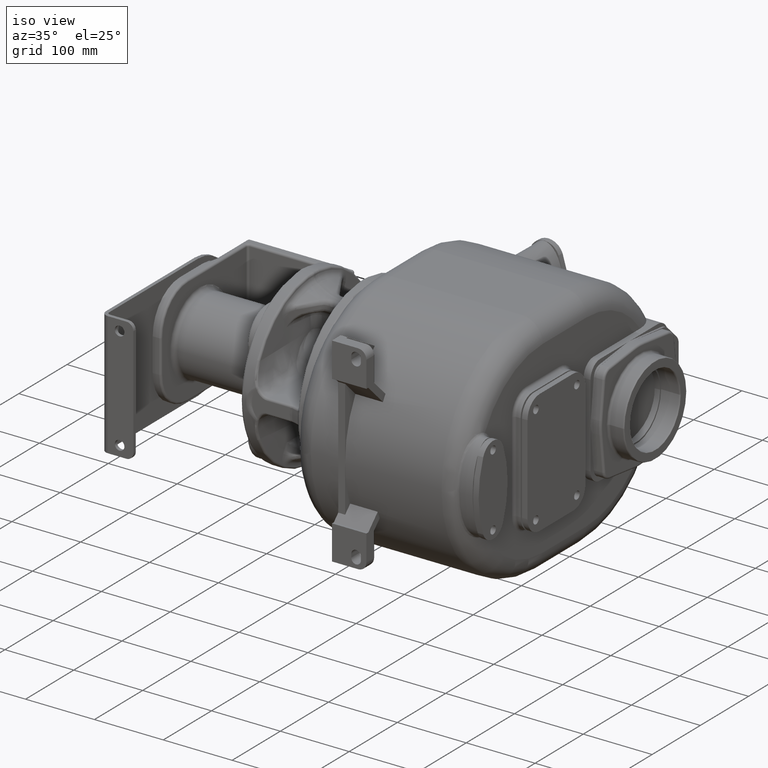
[diagram: clean part render]
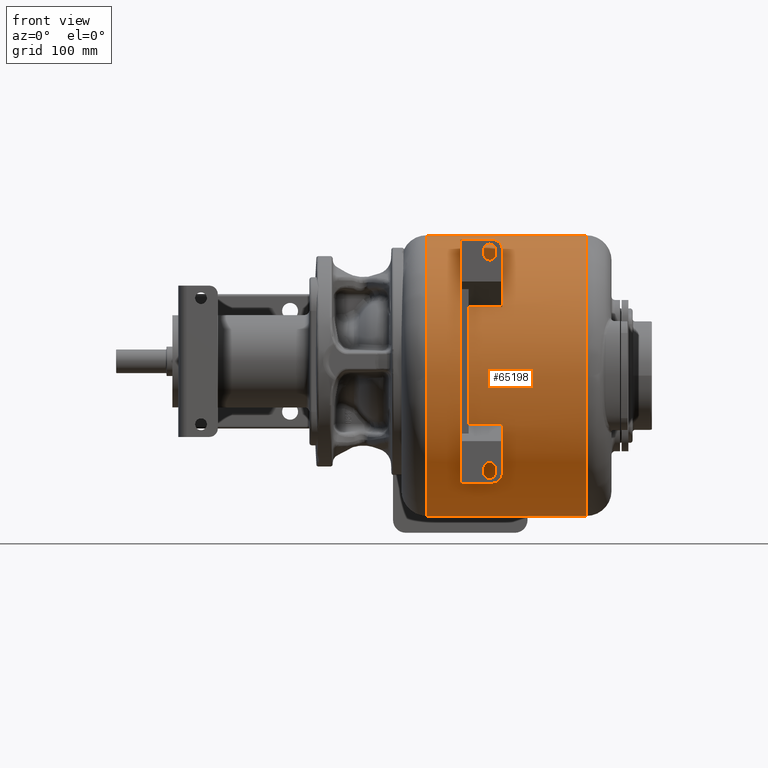
[diagram: tour spotlight — one face highlighted and labeled with its STEP entity id]
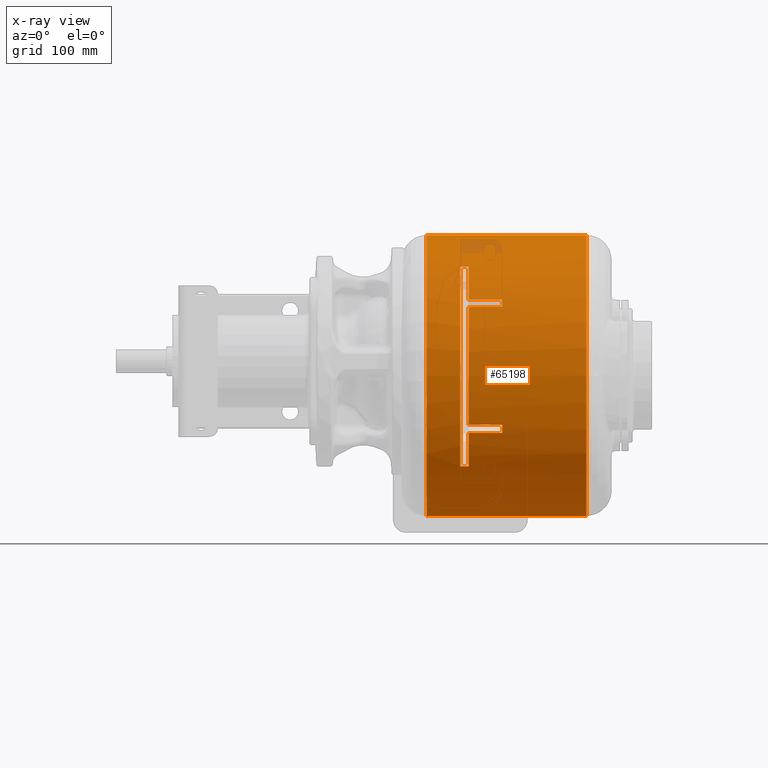
[diagram: x-ray of the same camera — body ghosted, this tour face saturated]
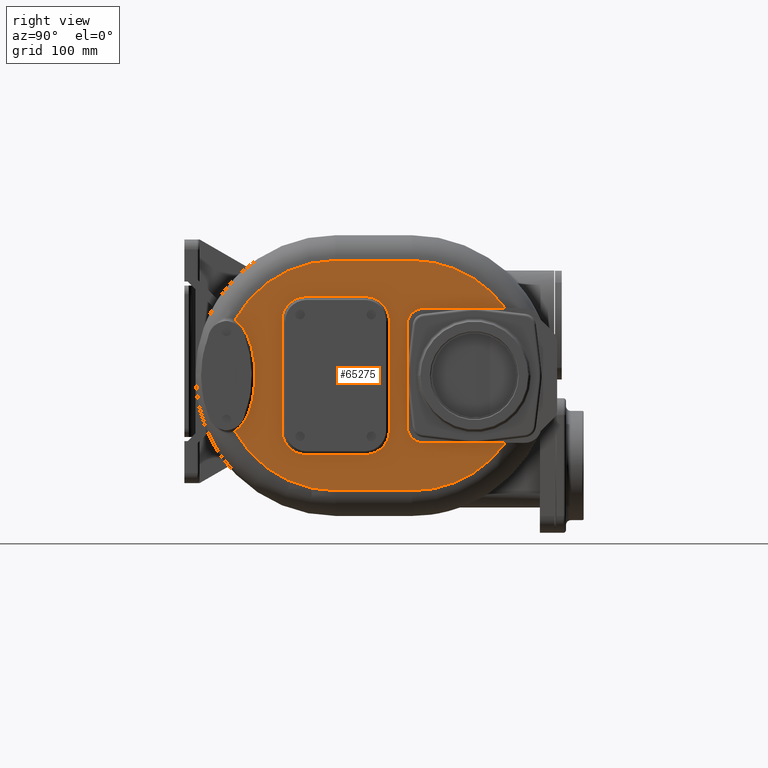
[diagram: tour spotlight — one face highlighted and labeled with its STEP entity id]
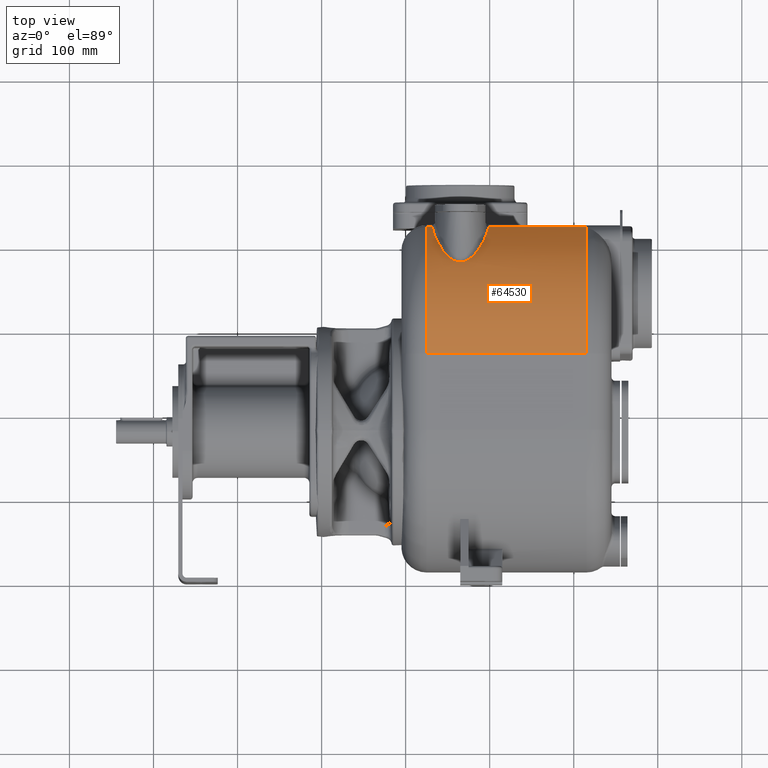
[diagram: tour spotlight — one face highlighted and labeled with its STEP entity id]
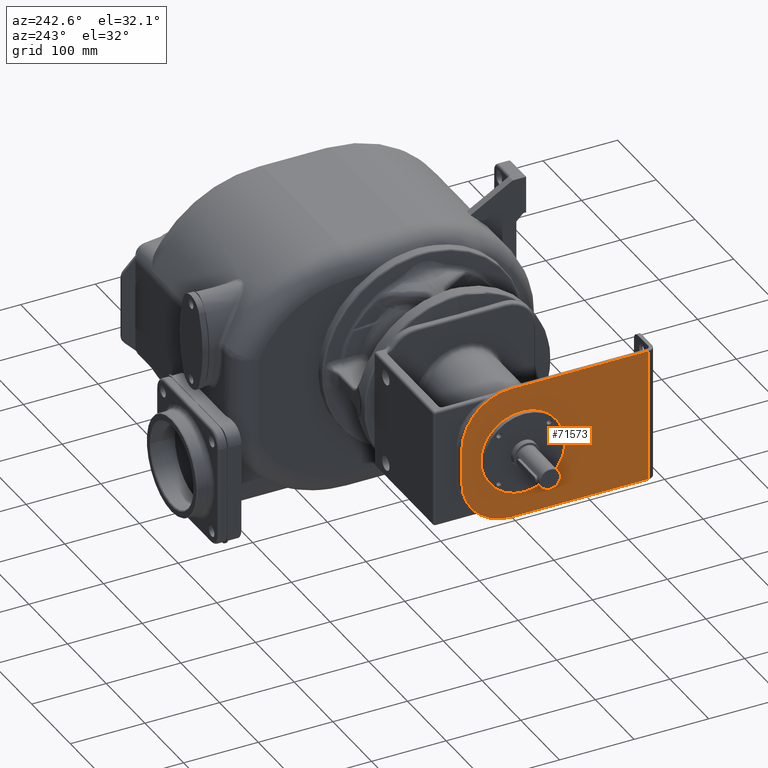
[diagram: tour spotlight — one face highlighted and labeled with its STEP entity id]
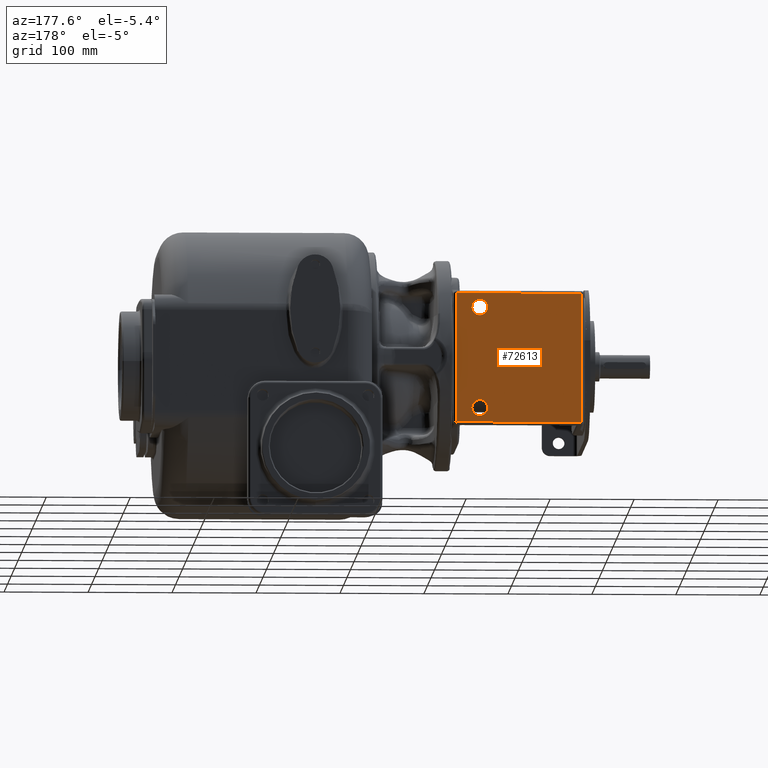
[diagram: tour spotlight — one face highlighted and labeled with its STEP entity id]
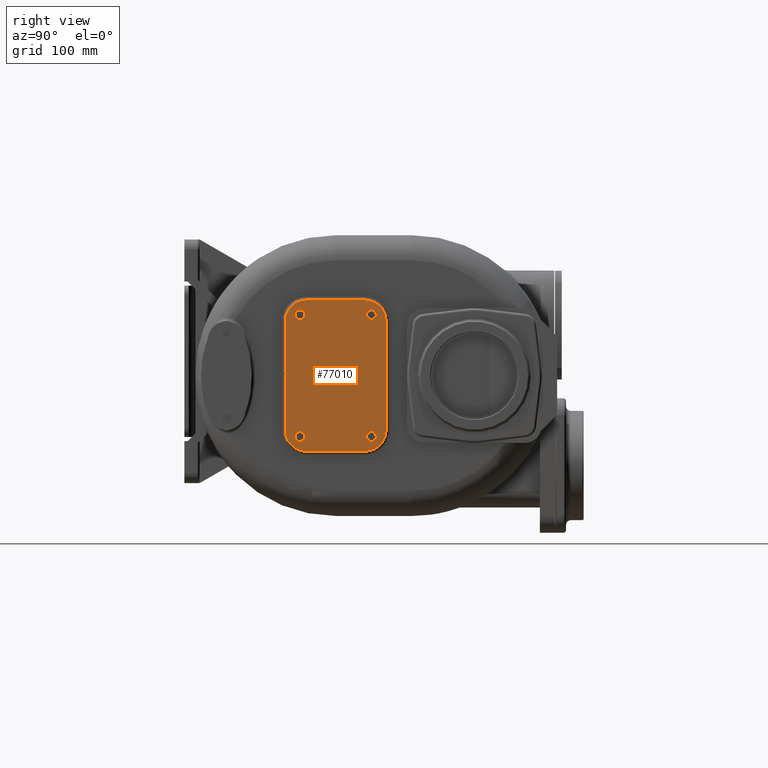
[diagram: tour spotlight — one face highlighted and labeled with its STEP entity id]
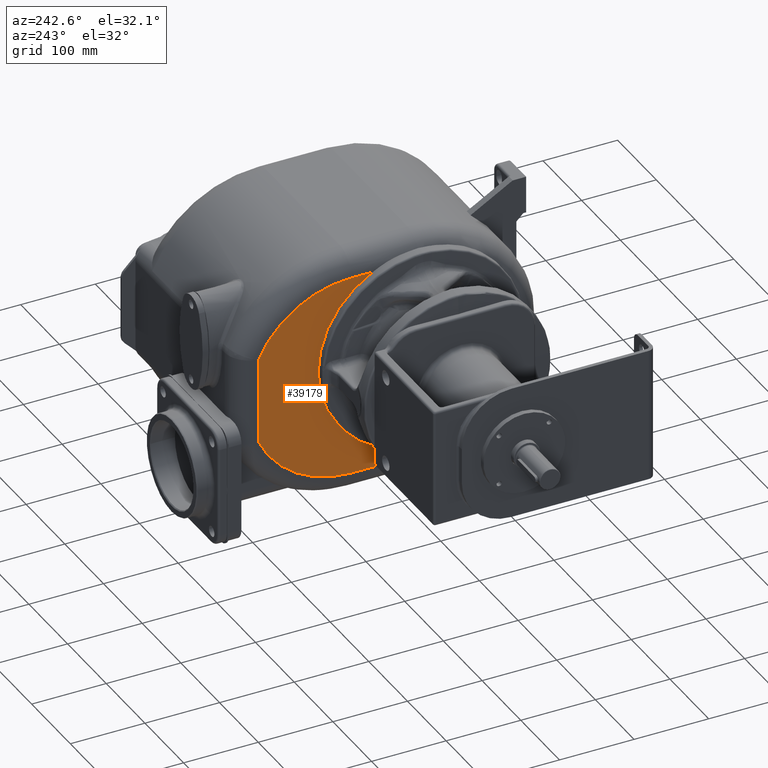
[diagram: tour spotlight — one face highlighted and labeled with its STEP entity id]
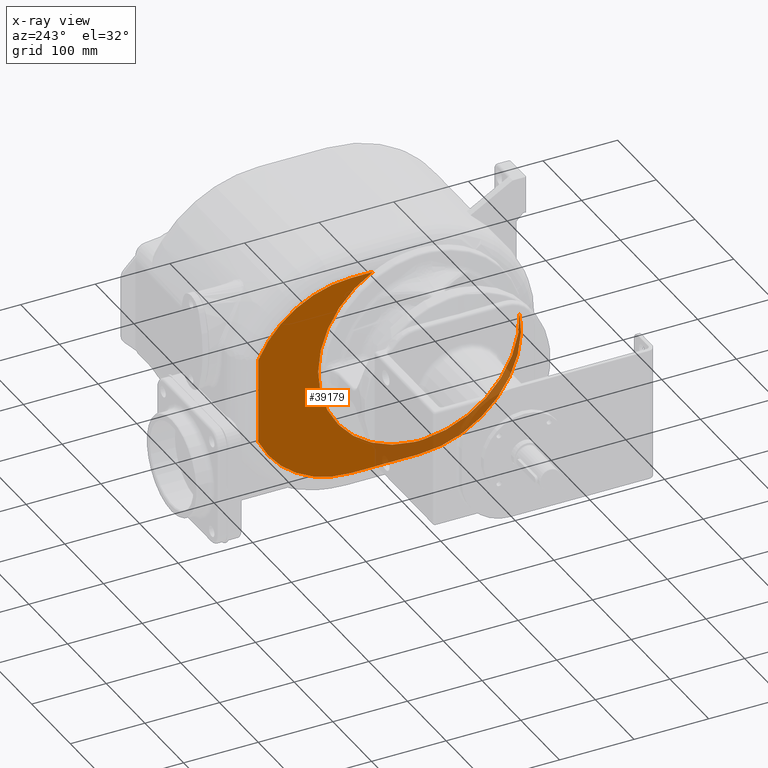
[diagram: x-ray of the same camera — body ghosted, this tour face saturated]
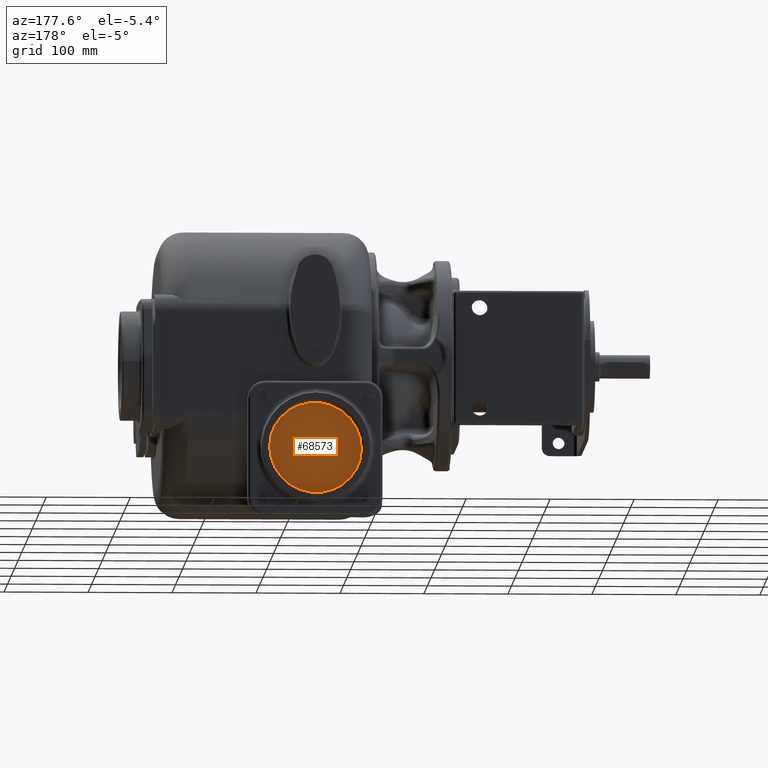
[diagram: tour spotlight — one face highlighted and labeled with its STEP entity id]
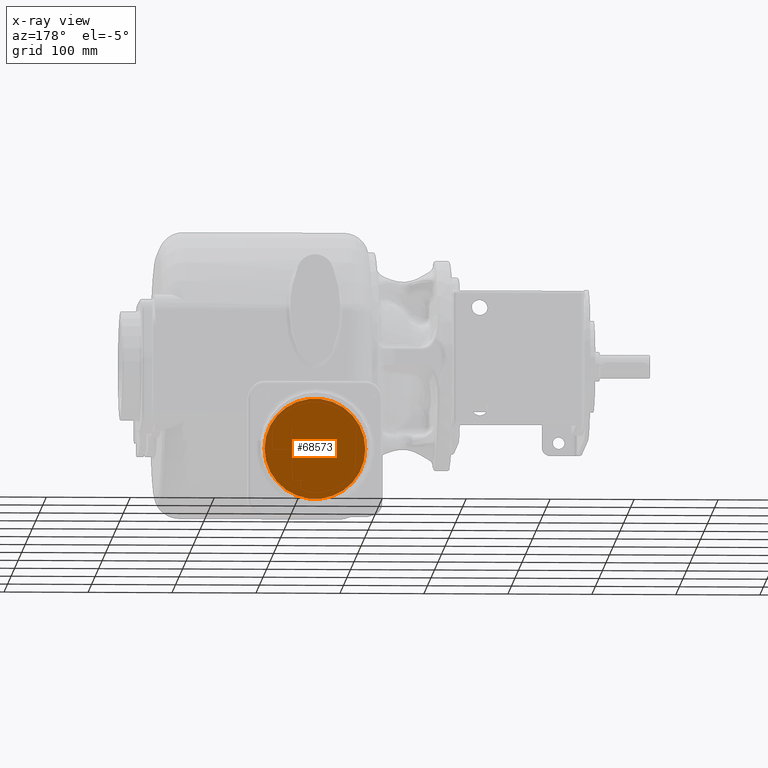
[diagram: x-ray of the same camera — body ghosted, this tour face saturated]
A machine part: a face-by-face anatomy tour. The part has 1137 B-rep faces; the first image is the clean iso view, then the 8 largest visible faces are spotlighted one at a time (largest first), each with its STEP entity span.

Face 1 — front view, entity #65198. An x-ray twin of the same camera follows (body ghosted, this face saturated) — the face is partly hidden behind the body. In plain terms, the highlighted cylindrical surface (partial cylindrical patch) has radius 167 mm, axis along (-1, 0, 0).
Definition (entity closure, byte-faithful):
#21927=CARTESIAN_POINT('',(-7.5E1,1.8E2,-1.7E1));
#21928=DIRECTION('',(-1.E0,0.E0,0.E0));
#21929=DIRECTION('',(0.E0,0.E0,-1.E0));
#21930=AXIS2_PLACEMENT_3D('',#21927,#21928,#21929);
#21932=CARTESIAN_POINT('',(1.15E2,1.8E2,-1.7E1));
#21933=DIRECTION('',(1.E0,0.E0,0.E0));
#21934=DIRECTION('',(0.E0,0.E0,1.E0));
#21935=AXIS2_PLACEMENT_3D('',#21932,#21933,#21934);
#21937=DIRECTION('',(1.E0,-5.804012241577E-14,0.E0));
#21938=VECTOR('',#21937,1.9E2);
#21939=CARTESIAN_POINT('',(-7.5E1,1.8E2,-1.84E2));
#21940=LINE('',#21939,#21938);
#21941=DIRECTION('',(-1.E0,0.E0,0.E0));
#21942=VECTOR('',#21941,1.E1);
#21943=CARTESIAN_POINT('',(-2.5E1,5.262865792069E1,-1.250071350278E2));
#21944=LINE('',#21943,#21942);
#21945=CARTESIAN_POINT('',(-2.5E1,1.8E2,-1.7E1));
#21946=DIRECTION('',(-1.E0,0.E0,0.E0));
#21947=DIRECTION('',(0.E0,-7.627026471815E-1,-6.467493115438E-1));
#21948=AXIS2_PLACEMENT_3D('',#21945,#21946,#21947);
#21950=DIRECTION('',(-1.E0,0.E0,0.E0));
#21951=VECTOR('',#21950,4.E1);
#21952=CARTESIAN_POINT('',(1.5E1,2.763469748150E1,-8.536530251850E1));
#21953=LINE('',#21952,#21951);
#21954=CARTESIAN_POINT('',(1.5E1,1.8E2,-1.7E1));
#21955=DIRECTION('',(-1.E0,0.E0,0.E0));
#21956=DIRECTION('',(0.E0,-9.123670809491E-1,-4.093730689731E-1));
#21957=AXIS2_PLACEMENT_3D('',#21954,#21955,#21956);
#21959=DIRECTION('',(-1.E0,0.E0,0.E0));
#21960=VECTOR('',#21959,4.E1);
#21961=CARTESIAN_POINT('',(1.5E1,2.352069086651E1,-7.533717350975E1));
#21962=LINE('',#21961,#21960);
#21963=CARTESIAN_POINT('',(-2.5E1,1.8E2,-1.7E1));
#21964=DIRECTION('',(-1.E0,0.E0,0.E0));
#21965=DIRECTION('',(0.E0,-9.370018510987E-1,-3.493243922740E-1));
#21966=AXIS2_PLACEMENT_3D('',#21963,#21964,#21965);
#21968=CARTESIAN_POINT('',(-2.5E1,1.8E2,-1.7E1));
#21969=DIRECTION('',(-1.E0,0.E0,0.E0));
#21970=DIRECTION('',(0.E0,-1.E0,0.E0));
#21971=AXIS2_PLACEMENT_3D('',#21968,#21969,#21970);
#21973=DIRECTION('',(-1.E0,0.E0,0.E0));
#21974=VECTOR('',#21973,4.E1);
#21975=CARTESIAN_POINT('',(1.5E1,3.428058592033E1,6.457727845594E1));
#21976=LINE('',#21975,#21974);
#21977=CARTESIAN_POINT('',(1.5E1,1.8E2,-1.7E1));
#21978=DIRECTION('',(-1.E0,0.E0,0.E0));
#21979=DIRECTION('',(0.E0,-8.725713417944E-1,4.884866973410E-1));
#21980=AXIS2_PLACEMENT_3D('',#21977,#21978,#21979);
#21982=DIRECTION('',(-1.E0,0.E0,0.E0));
#21983=VECTOR('',#21982,4.E1);
#21984=CARTESIAN_POINT('',(1.5E1,3.958986179715E1,7.341013820285E1));
#21985=LINE('',#21984,#21983);
#21986=CARTESIAN_POINT('',(-2.5E1,1.8E2,-1.7E1));
#21987=DIRECTION('',(-1.E0,0.E0,0.E0));
#21988=DIRECTION('',(0.E0,-8.407792706757E-1,5.413780730709E-1));
#21989=AXIS2_PLACEMENT_3D('',#21986,#21987,#21988);
#21991=DIRECTION('',(-1.E0,0.E0,0.E0));
#21992=VECTOR('',#21991,1.E1);
#21993=CARTESIAN_POINT('',(-2.5E1,7.444551326787E1,1.124111677202E2));
#21994=LINE('',#21993,#21992);
#22003=DIRECTION('',(1.E0,1.100967270567E-13,0.E0));
#22004=VECTOR('',#22003,1.9E2);
#22005=CARTESIAN_POINT('',(-7.5E1,1.8E2,1.5E2));
#22006=LINE('',#22005,#22004);
#25437=CARTESIAN_POINT('',(-3.5E1,1.8E2,-1.7E1));
#25438=DIRECTION('',(-1.E0,0.E0,0.E0));
#25439=DIRECTION('',(0.E0,-7.627026471815E-1,-6.467493115438E-1));
#25440=AXIS2_PLACEMENT_3D('',#25437,#25438,#25439);
#25466=CARTESIAN_POINT('',(-3.5E1,1.8E2,-1.7E1));
#25467=DIRECTION('',(-1.E0,0.E0,0.E0));
#25468=DIRECTION('',(0.E0,-1.E0,0.E0));
#25469=AXIS2_PLACEMENT_3D('',#25466,#25467,#25468);
#29003=CARTESIAN_POINT('',(1.15E2,1.8E2,-1.84E2));
#29004=VERTEX_POINT('',#29003);
#29005=CARTESIAN_POINT('',(1.15E2,1.8E2,1.5E2));
#29006=VERTEX_POINT('',#29005);
#29032=CARTESIAN_POINT('',(-7.5E1,1.8E2,-1.84E2));
#29034=VERTEX_POINT('',#29032);
#29035=CARTESIAN_POINT('',(-7.5E1,1.8E2,1.5E2));
#29036=VERTEX_POINT('',#29035);
#29082=CARTESIAN_POINT('',(1.5E1,2.763469748150E1,-8.536530251850E1));
#29083=CARTESIAN_POINT('',(1.5E1,2.352069086651E1,-7.533717350975E1));
#29084=VERTEX_POINT('',#29082);
#29085=VERTEX_POINT('',#29083);
#29086=CARTESIAN_POINT('',(1.5E1,3.428058592033E1,6.457727845594E1));
#29087=CARTESIAN_POINT('',(1.5E1,3.958986179715E1,7.341013820285E1));
#29088=VERTEX_POINT('',#29086);
#29089=VERTEX_POINT('',#29087);
#29098=CARTESIAN_POINT('',(-2.5E1,5.262865792069E1,-1.250071350278E2));
#29099=CARTESIAN_POINT('',(-2.5E1,2.763469748150E1,-8.536530251850E1));
#29100=VERTEX_POINT('',#29098);
#29101=VERTEX_POINT('',#29099);
#29102=CARTESIAN_POINT('',(-2.5E1,2.352069086651E1,-7.533717350975E1));
#29103=CARTESIAN_POINT('',(-2.5E1,1.3E1,-1.7E1));
#29104=VERTEX_POINT('',#29102);
#29105=VERTEX_POINT('',#29103);
#29106=CARTESIAN_POINT('',(-2.5E1,3.428058592033E1,6.457727845594E1));
#29107=VERTEX_POINT('',#29106);
#29108=CARTESIAN_POINT('',(-2.5E1,3.958986179715E1,7.341013820285E1));
#29109=CARTESIAN_POINT('',(-2.5E1,7.444551326787E1,1.124111677202E2));
#29110=VERTEX_POINT('',#29108);
#29111=VERTEX_POINT('',#29109);
#29112=CARTESIAN_POINT('',(-3.5E1,5.262865792069E1,-1.250071350278E2));
#29113=VERTEX_POINT('',#29112);
#29114=CARTESIAN_POINT('',(-3.5E1,7.444551326787E1,1.124111677202E2));
#29115=VERTEX_POINT('',#29114);
#29129=CARTESIAN_POINT('',(-3.5E1,1.3E1,-1.7E1));
#29131=VERTEX_POINT('',#29129);
#65154=CARTESIAN_POINT('',(-1.05E2,1.8E2,-1.7E1));
#65155=DIRECTION('',(-1.E0,0.E0,0.E0));
#65156=DIRECTION('',(0.E0,0.E0,1.E0));
#65157=AXIS2_PLACEMENT_3D('',#65154,#65155,#65156);
#65158=CYLINDRICAL_SURFACE('',#65157,1.67E2);
#65159=ORIENTED_EDGE('',*,*,#65003,.T.);
#65161=ORIENTED_EDGE('',*,*,#65160,.T.);
#65163=ORIENTED_EDGE('',*,*,#65162,.T.);
#65165=ORIENTED_EDGE('',*,*,#65164,.F.);
#65166=EDGE_LOOP('',(#65159,#65161,#65163,#65165));
#65167=FACE_OUTER_BOUND('',#65166,.F.);
#65169=ORIENTED_EDGE('',*,*,#65168,.F.);
#65171=ORIENTED_EDGE('',*,*,#65170,.F.);
#65173=ORIENTED_EDGE('',*,*,#65172,.T.);
#65175=ORIENTED_EDGE('',*,*,#65174,.F.);
#65177=ORIENTED_EDGE('',*,*,#65176,.T.);
#65179=ORIENTED_EDGE('',*,*,#65178,.T.);
#65181=ORIENTED_EDGE('',*,*,#65180,.T.);
#65183=ORIENTED_EDGE('',*,*,#65182,.T.);
#65185=ORIENTED_EDGE('',*,*,#65184,.F.);
#65187=ORIENTED_EDGE('',*,*,#65186,.T.);
#65189=ORIENTED_EDGE('',*,*,#65188,.T.);
#65191=ORIENTED_EDGE('',*,*,#65190,.T.);
#65193=ORIENTED_EDGE('',*,*,#65192,.T.);
#65195=ORIENTED_EDGE('',*,*,#65194,.F.);
#65196=EDGE_LOOP('',(#65169,#65171,#65173,#65175,#65177,#65179,#65181,#65183,
#65185,#65187,#65189,#65191,#65193,#65195));
#65197=FACE_BOUND('',#65196,.F.);
#65198=ADVANCED_FACE('',(#65167,#65197),#65158,.T.);
#21931=CIRCLE('',#21930,1.67E2);
#21936=CIRCLE('',#21935,1.67E2);
#21949=CIRCLE('',#21948,1.67E2);
#21958=CIRCLE('',#21957,1.67E2);
#21967=CIRCLE('',#21966,1.67E2);
#21972=CIRCLE('',#21971,1.67E2);
#21981=CIRCLE('',#21980,1.67E2);
#21990=CIRCLE('',#21989,1.67E2);
#25441=CIRCLE('',#25440,1.67E2);
#25470=CIRCLE('',#25469,1.67E2);
#65003=EDGE_CURVE('',#29034,#29036,#21931,.T.);
#65160=EDGE_CURVE('',#29036,#29006,#22006,.T.);
#65162=EDGE_CURVE('',#29006,#29004,#21936,.T.);
#65164=EDGE_CURVE('',#29034,#29004,#21940,.T.);
#65168=EDGE_CURVE('',#29113,#29131,#25441,.T.);
#65170=EDGE_CURVE('',#29100,#29113,#21944,.T.);
#65172=EDGE_CURVE('',#29100,#29101,#21949,.T.);
#65174=EDGE_CURVE('',#29084,#29101,#21953,.T.);
#65176=EDGE_CURVE('',#29084,#29085,#21958,.T.);
#65178=EDGE_CURVE('',#29085,#29104,#21962,.T.);
#65180=EDGE_CURVE('',#29104,#29105,#21967,.T.);
#65182=EDGE_CURVE('',#29105,#29107,#21972,.T.);
#65184=EDGE_CURVE('',#29088,#29107,#21976,.T.);
#65186=EDGE_CURVE('',#29088,#29089,#21981,.T.);
#65188=EDGE_CURVE('',#29089,#29110,#21985,.T.);
#65190=EDGE_CURVE('',#29110,#29111,#21990,.T.);
#65192=EDGE_CURVE('',#29111,#29115,#21994,.T.);
#65194=EDGE_CURVE('',#29131,#29115,#25470,.T.);

Face 2 — right view, entity #65275. In plain terms, the highlighted planar face has unit normal (-1, 0, 0).
Definition (entity closure, byte-faithful):
#22012=CARTESIAN_POINT('',(1.449999764457E2,6.000517973272E1,
-8.310781117937E1));
#22013=CARTESIAN_POINT('',(1.449999693767E2,6.020907861962E1,
-8.298629253741E1));
#22014=CARTESIAN_POINT('',(1.450000142123E2,6.061863820995E1,
-8.273386828182E1));
#22015=CARTESIAN_POINT('',(1.449999961918E2,6.123737755604E1,
-8.232636376336E1));
#22016=CARTESIAN_POINT('',(1.450000010204E2,6.186096145558E1,
-8.188855736942E1));
#22017=CARTESIAN_POINT('',(1.449999997266E2,6.248931695067E1,
-8.141918804977E1));
#22018=CARTESIAN_POINT('',(1.450000000733E2,6.312234316550E1,
-8.091695914753E1));
#22019=CARTESIAN_POINT('',(1.449999999804E2,6.376034357556E1,
-8.038005274181E1));
#22020=CARTESIAN_POINT('',(1.450000000053E2,6.440349476392E1,
-7.980662818643E1));
#22021=CARTESIAN_POINT('',(1.449999999986E2,6.505176431364E1,
-7.919496177473E1));
#22022=CARTESIAN_POINT('',(1.450000000004E2,6.570510552938E1,
-7.854312208558E1));
#22023=CARTESIAN_POINT('',(1.449999999999E2,6.636365258118E1,
-7.784873332545E1));
#22024=CARTESIAN_POINT('',(1.45E2,6.702733940818E1,-7.710958975408E1));
#22025=CARTESIAN_POINT('',(1.45E2,6.769596567421E1,-7.632344996941E1));
#22026=CARTESIAN_POINT('',(1.45E2,6.836926641553E1,-7.548770349952E1));
#22027=CARTESIAN_POINT('',(1.45E2,6.904684807779E1,-7.459998370227E1));
#22028=CARTESIAN_POINT('',(1.45E2,6.972821148090E1,-7.365775799923E1));
#22029=CARTESIAN_POINT('',(1.45E2,7.041282554019E1,-7.265814357587E1));
#22030=CARTESIAN_POINT('',(1.45E2,7.110005924588E1,-7.159854690656E1));
#22031=CARTESIAN_POINT('',(1.45E2,7.178902041086E1,-7.047607092316E1));
#22032=CARTESIAN_POINT('',(1.45E2,7.247878624086E1,-6.928802409320E1));
#22033=CARTESIAN_POINT('',(1.45E2,7.316819259528E1,-6.803166995010E1));
#22034=CARTESIAN_POINT('',(1.45E2,7.385594558250E1,-6.670427541905E1));
#22035=CARTESIAN_POINT('',(1.45E2,7.454062636904E1,-6.530332071154E1));
#22036=CARTESIAN_POINT('',(1.45E2,7.522049075234E1,-6.382635675505E1));
#22037=CARTESIAN_POINT('',(1.45E2,7.589380368458E1,-6.227120708922E1));
#22038=CARTESIAN_POINT('',(1.45E2,7.655841495604E1,-6.063593522209E1));
#22039=CARTESIAN_POINT('',(1.45E2,7.721223060555E1,-5.891890267305E1));
#22040=CARTESIAN_POINT('',(1.45E2,7.785273657734E1,-5.711892186356E1));
#22041=CARTESIAN_POINT('',(1.45E2,7.847747590348E1,-5.523516200947E1));
#22042=CARTESIAN_POINT('',(1.45E2,7.908364100423E1,-5.326740584804E1));
#22043=CARTESIAN_POINT('',(1.45E2,7.966844516282E1,-5.121592200844E1));
#22044=CARTESIAN_POINT('',(1.45E2,8.022889654997E1,-4.908168109914E1));
#22045=CARTESIAN_POINT('',(1.45E2,8.076194710796E1,-4.686636594001E1));
#22046=CARTESIAN_POINT('',(1.45E2,8.126455994676E1,-4.457232834192E1));
#22047=CARTESIAN_POINT('',(1.45E2,8.173358782567E1,-4.220285134461E1));
#22048=CARTESIAN_POINT('',(1.45E2,8.216609071120E1,-3.976177491458E1));
#22049=CARTESIAN_POINT('',(1.45E2,8.255905571154E1,-3.725403614415E1));
#22050=CARTESIAN_POINT('',(1.45E2,8.290977319525E1,-3.468511020067E1));
#22051=CARTESIAN_POINT('',(1.45E2,8.321560657688E1,-3.206148377298E1));
#22052=CARTESIAN_POINT('',(1.45E2,8.347429314912E1,-2.939011316222E1));
#22053=CARTESIAN_POINT('',(1.45E2,8.368374939503E1,-2.667883431327E1));
#22054=CARTESIAN_POINT('',(1.45E2,8.384238899041E1,-2.393574588294E1));
#22055=CARTESIAN_POINT('',(1.45E2,8.394881389638E1,-2.116975833354E1));
#22056=CARTESIAN_POINT('',(1.45E2,8.400227652858E1,-1.838978915143E1));
#22057=CARTESIAN_POINT('',(1.45E2,8.400219126014E1,-1.560518969778E1));
#22058=CARTESIAN_POINT('',(1.45E2,8.394870434235E1,-1.282530482272E1));
#22059=CARTESIAN_POINT('',(1.45E2,8.384212832286E1,-1.005930786762E1));
#22060=CARTESIAN_POINT('',(1.45E2,8.368344273063E1,-7.316409050208E0));
#22061=CARTESIAN_POINT('',(1.45E2,8.347388177624E1,-4.605203462417E0));
#22062=CARTESIAN_POINT('',(1.45E2,8.321512637720E1,-1.934023148420E0));
#22063=CARTESIAN_POINT('',(1.45E2,8.290923310511E1,6.894036632753E-1));
#22064=CARTESIAN_POINT('',(1.45E2,8.255845610399E1,3.258116673035E0));
#22065=CARTESIAN_POINT('',(1.45E2,8.216543927398E1,5.765660465916E0));
#22066=CARTESIAN_POINT('',(1.45E2,8.173291043354E1,8.206499790673E0));
#22067=CARTESIAN_POINT('',(1.45E2,8.126382585213E1,1.057579905904E1));
#22068=CARTESIAN_POINT('',(1.45E2,8.076121833755E1,1.286958618797E1));
#22069=CARTESIAN_POINT('',(1.45E2,8.022811465890E1,1.508474027517E1));
#22070=CARTESIAN_POINT('',(1.45E2,7.966768235937E1,1.721874003390E1));
#22071=CARTESIAN_POINT('',(1.45E2,7.908284954998E1,1.927004688712E1));
#22072=CARTESIAN_POINT('',(1.45E2,7.847671247644E1,2.123756487084E1));
#22073=CARTESIAN_POINT('',(1.45E2,7.785197619610E1,2.312112147630E1));
#22074=CARTESIAN_POINT('',(1.45E2,7.721150264383E1,2.492088655744E1));
#22075=CARTESIAN_POINT('',(1.45E2,7.655770662227E1,2.663772821880E1));
#22076=CARTESIAN_POINT('',(1.45E2,7.589313370042E1,2.827280948986E1));
#22077=CARTESIAN_POINT('',(1.45E2,7.521984689988E1,2.982778841677E1));
#22078=CARTESIAN_POINT('',(1.45E2,7.454003309744E1,3.130458316172E1));
#22079=CARTESIAN_POINT('',(1.45E2,7.385538047279E1,3.270537979018E1));
#22080=CARTESIAN_POINT('',(1.45E2,7.316769005646E1,3.403263048437E1));
#22081=CARTESIAN_POINT('',(1.45E2,7.247831771831E1,3.528883759E1));
#22082=CARTESIAN_POINT('',(1.45E2,7.178861111620E1,3.647676825783E1));
#22083=CARTESIAN_POINT('',(1.45E2,7.109970137951E1,3.759911181792E1));
#22084=CARTESIAN_POINT('',(1.45E2,7.041252232108E1,3.865859681192E1));
#22085=CARTESIAN_POINT('',(1.45E2,6.972796529119E1,3.965811139133E1));
#22086=CARTESIAN_POINT('',(1.45E2,6.904665758806E1,4.060024049898E1));
#22087=CARTESIAN_POINT('',(1.45E2,6.836913286776E1,4.148787048753E1));
#22088=CARTESIAN_POINT('',(1.45E2,6.769588932345E1,4.232354309227E1));
#22089=CARTESIAN_POINT('',(1.45E2,6.702731135926E1,4.310962381659E1));
#22090=CARTESIAN_POINT('',(1.45E2,6.636365223919E1,4.384872914792E1));
#22091=CARTESIAN_POINT('',(1.450000000002E2,6.570511754002E1,4.454310838001E1));
#22092=CARTESIAN_POINT('',(1.449999999994E2,6.505178172603E1,4.519494630379E1));
#22093=CARTESIAN_POINT('',(1.450000000021E2,6.440352027480E1,4.580660394798E1));
#22094=CARTESIAN_POINT('',(1.449999999921E2,6.376037479544E1,4.638002550092E1));
#22095=CARTESIAN_POINT('',(1.450000000297E2,6.312237817743E1,4.691693136023E1));
#22096=CARTESIAN_POINT('',(1.449999998893E2,6.248935360898E1,4.741916049045E1));
#22097=CARTESIAN_POINT('',(1.450000004131E2,6.186099599361E1,4.788853084821E1));
#22098=CARTESIAN_POINT('',(1.449999984581E2,6.123740515532E1,4.832634284319E1));
#22099=CARTESIAN_POINT('',(1.450000057543E2,6.061865270503E1,4.873385805807E1));
#22100=CARTESIAN_POINT('',(1.449999876011E2,6.020908520952E1,4.898628796771E1));
#22101=CARTESIAN_POINT('',(1.449999946299E2,6.000517850194E1,4.910781201859E1));
#22103=CARTESIAN_POINT('',(1.45E2,1.8E2,-1.7E1));
#22104=DIRECTION('',(1.E0,0.E0,0.E0));
#22105=DIRECTION('',(0.E0,0.E0,1.E0));
#22106=AXIS2_PLACEMENT_3D('',#22103,#22104,#22105);
#22108=DIRECTION('',(0.E0,-1.E0,0.E0));
#22109=VECTOR('',#22108,9.080238452193E1);
#22110=CARTESIAN_POINT('',(1.45E2,2.708023845219E2,1.2E2));
#22111=LINE('',#22110,#22109);
#22112=CARTESIAN_POINT('',(1.45E2,2.708023845219E2,-1.7E1));
#22113=DIRECTION('',(1.E0,0.E0,0.E0));
#22114=DIRECTION('',(0.E0,8.117956645423E-1,5.839416058394E-1));
#22115=AXIS2_PLACEMENT_3D('',#22112,#22113,#22114);
#22117=CARTESIAN_POINT('',(1.45E2,2.708023845219E2,-1.7E1));
#22118=DIRECTION('',(1.E0,0.E0,0.E0));
#22119=DIRECTION('',(0.E0,0.E0,-1.E0));
#22120=AXIS2_PLACEMENT_3D('',#22117,#22118,#22119);
#22122=DIRECTION('',(0.E0,1.E0,0.E0));
#22123=VECTOR('',#22122,9.080238452193E1);
#22124=CARTESIAN_POINT('',(1.45E2,1.8E2,-1.54E2));
#22125=LINE('',#22124,#22123);
#22126=CARTESIAN_POINT('',(1.45E2,1.8E2,-1.7E1));
#22127=DIRECTION('',(1.E0,0.E0,0.E0));
#22128=DIRECTION('',(0.E0,-8.758746115800E-1,-4.825387702450E-1));
#22129=AXIS2_PLACEMENT_3D('',#22126,#22127,#22128);
#22131=CARTESIAN_POINT('',(1.45E2,2.15E2,4.8E1));
#22132=DIRECTION('',(1.E0,0.E0,0.E0));
#22133=DIRECTION('',(0.E0,1.E0,0.E0));
#22134=AXIS2_PLACEMENT_3D('',#22131,#22132,#22133);
#22136=DIRECTION('',(0.E0,-1.E0,6.869933193842E-12));
#22137=VECTOR('',#22136,6.999999999905E1);
#22138=CARTESIAN_POINT('',(1.45E2,2.149999999994E2,7.699999999918E1));
#22139=LINE('',#22138,#22137);
#22140=CARTESIAN_POINT('',(1.45E2,1.45E2,4.8E1));
#22141=DIRECTION('',(1.E0,0.E0,0.E0));
#22142=DIRECTION('',(0.E0,0.E0,1.E0));
#22143=AXIS2_PLACEMENT_3D('',#22140,#22141,#22142);
#22145=DIRECTION('',(0.E0,-3.699194796661E-12,-1.E0));
#22146=VECTOR('',#22145,1.299999999991E2);
#22147=CARTESIAN_POINT('',(1.45E2,1.160000000008E2,4.799999999942E1));
#22148=LINE('',#22147,#22146);
#22149=CARTESIAN_POINT('',(1.45E2,1.45E2,-8.2E1));
#22150=DIRECTION('',(1.E0,0.E0,0.E0));
#22151=DIRECTION('',(0.E0,-1.E0,0.E0));
#22152=AXIS2_PLACEMENT_3D('',#22149,#22150,#22151);
#22154=DIRECTION('',(0.E0,1.E0,-6.869933193842E-12));
#22155=VECTOR('',#22154,6.999999999905E1);
#22156=CARTESIAN_POINT('',(1.45E2,1.450000000006E2,-1.109999999992E2));
#22157=LINE('',#22156,#22155);
#22158=CARTESIAN_POINT('',(1.45E2,2.15E2,-8.2E1));
#22159=DIRECTION('',(1.E0,0.E0,0.E0));
#22160=DIRECTION('',(0.E0,0.E0,-1.E0));
#22161=AXIS2_PLACEMENT_3D('',#22158,#22159,#22160);
#22163=DIRECTION('',(0.E0,3.699413425195E-12,1.E0));
#22164=VECTOR('',#22163,1.299999999991E2);
#22165=CARTESIAN_POINT('',(1.45E2,2.439999999992E2,-8.199999999942E1));
#22166=LINE('',#22165,#22164);
#22207=CARTESIAN_POINT('',(1.449999946299E2,6.000517850194E1,4.910781201859E1));
#22374=CARTESIAN_POINT('',(1.449999764457E2,6.000517973272E1,
-8.310781117937E1));
#22767=DIRECTION('',(0.E0,1.E0,0.E0));
#22768=VECTOR('',#22767,9.701839056423E1);
#22769=CARTESIAN_POINT('',(1.45E2,2.85E2,-9.7E1));
#22770=LINE('',#22769,#22768);
#22910=DIRECTION('',(0.E0,0.E0,-1.E0));
#22911=VECTOR('',#22910,1.2E2);
#22912=CARTESIAN_POINT('',(1.45E2,2.65E2,4.3E1));
#22913=LINE('',#22912,#22911);
#22918=CARTESIAN_POINT('',(1.45E2,2.85E2,-7.7E1));
#22919=DIRECTION('',(1.E0,0.E0,0.E0));
#22920=DIRECTION('',(0.E0,-1.E0,0.E0));
#22921=AXIS2_PLACEMENT_3D('',#22918,#22919,#22920);
#22927=CARTESIAN_POINT('',(1.45E2,2.85E2,4.3E1));
#22928=DIRECTION('',(1.E0,0.E0,0.E0));
#22929=DIRECTION('',(0.E0,0.E0,1.E0));
#22930=AXIS2_PLACEMENT_3D('',#22927,#22928,#22929);
#22936=DIRECTION('',(0.E0,-1.E0,0.E0));
#22937=VECTOR('',#22936,9.701839056423E1);
#22938=CARTESIAN_POINT('',(1.45E2,3.820183905642E2,6.3E1));
#22939=LINE('',#22938,#22937);
#28989=CARTESIAN_POINT('',(1.45E2,2.65E2,4.3E1));
#28990=CARTESIAN_POINT('',(1.45E2,2.65E2,-7.7E1));
#28991=VERTEX_POINT('',#28989);
#28992=VERTEX_POINT('',#28990);
#28997=CARTESIAN_POINT('',(1.45E2,2.708023845219E2,-1.54E2));
#28998=CARTESIAN_POINT('',(1.45E2,3.820183905642E2,-9.7E1));
#28999=VERTEX_POINT('',#28997);
#29000=VERTEX_POINT('',#28998);
#29001=CARTESIAN_POINT('',(1.45E2,1.8E2,-1.54E2));
#29002=VERTEX_POINT('',#29001);
#29007=CARTESIAN_POINT('',(1.45E2,2.708023845219E2,1.2E2));
#29008=CARTESIAN_POINT('',(1.45E2,1.8E2,1.2E2));
#29009=VERTEX_POINT('',#29007);
#29010=VERTEX_POINT('',#29008);
#29013=CARTESIAN_POINT('',(1.45E2,3.820183905642E2,6.3E1));
#29014=VERTEX_POINT('',#29013);
#29017=CARTESIAN_POINT('',(1.45E2,2.85E2,6.3E1));
#29018=VERTEX_POINT('',#29017);
#29019=CARTESIAN_POINT('',(1.45E2,2.85E2,-9.7E1));
#29020=VERTEX_POINT('',#29019);
#29222=CARTESIAN_POINT('',(1.45E2,2.44E2,4.8E1));
#29223=CARTESIAN_POINT('',(1.45E2,2.15E2,7.7E1));
#29224=VERTEX_POINT('',#29222);
#29225=VERTEX_POINT('',#29223);
#29230=CARTESIAN_POINT('',(1.45E2,1.450000000004E2,7.699999999967E1));
#29231=VERTEX_POINT('',#29230);
#29234=CARTESIAN_POINT('',(1.45E2,1.16E2,4.8E1));
#29235=VERTEX_POINT('',#29234);
#29238=CARTESIAN_POINT('',(1.45E2,1.160000000003E2,-8.199999999963E1));
#29239=VERTEX_POINT('',#29238);
#29242=CARTESIAN_POINT('',(1.45E2,1.45E2,-1.11E2));
#29243=VERTEX_POINT('',#29242);
#29246=CARTESIAN_POINT('',(1.45E2,2.149999999996E2,-1.109999999997E2));
#29247=VERTEX_POINT('',#29246);
#29250=CARTESIAN_POINT('',(1.45E2,2.44E2,-8.2E1));
#29251=VERTEX_POINT('',#29250);
#29254=VERTEX_POINT('',#22207);
#29260=VERTEX_POINT('',#22374);
#65227=CARTESIAN_POINT('',(1.45E2,1.8E2,0.E0));
#65228=DIRECTION('',(-1.E0,0.E0,0.E0));
#65229=DIRECTION('',(0.E0,0.E0,1.E0));
#65230=AXIS2_PLACEMENT_3D('',#65227,#65228,#65229);
#65231=PLANE('',#65230);
#65233=ORIENTED_EDGE('',*,*,#65232,.T.);
#65235=ORIENTED_EDGE('',*,*,#65234,.F.);
#65236=ORIENTED_EDGE('',*,*,#65217,.F.);
#65238=ORIENTED_EDGE('',*,*,#65237,.F.);
#65240=ORIENTED_EDGE('',*,*,#65239,.T.);
#65242=ORIENTED_EDGE('',*,*,#65241,.T.);
#65244=ORIENTED_EDGE('',*,*,#65243,.T.);
#65246=ORIENTED_EDGE('',*,*,#65245,.T.);
#65248=ORIENTED_EDGE('',*,*,#65247,.T.);
#65250=ORIENTED_EDGE('',*,*,#65249,.F.);
#65252=ORIENTED_EDGE('',*,*,#65251,.F.);
#65254=ORIENTED_EDGE('',*,*,#65253,.F.);
#65255=EDGE_LOOP('',(#65233,#65235,#65236,#65238,#65240,#65242,#65244,#65246,
#65248,#65250,#65252,#65254));
#65256=FACE_OUTER_BOUND('',#65255,.F.);
#65258=ORIENTED_EDGE('',*,*,#65257,.T.);
#65260=ORIENTED_EDGE('',*,*,#65259,.T.);
#65262=ORIENTED_EDGE('',*,*,#65261,.T.);
#65264=ORIENTED_EDGE('',*,*,#65263,.T.);
#65266=ORIENTED_EDGE('',*,*,#65265,.T.);
#65268=ORIENTED_EDGE('',*,*,#65267,.T.);
#65270=ORIENTED_EDGE('',*,*,#65269,.T.);
#65272=ORIENTED_EDGE('',*,*,#65271,.T.);
#65273=EDGE_LOOP('',(#65258,#65260,#65262,#65264,#65266,#65268,#65270,#65272));
#65274=FACE_BOUND('',#65273,.F.);
#65275=ADVANCED_FACE('',(#65256,#65274),#65231,.F.);
#22102=B_SPLINE_CURVE_WITH_KNOTS('',3,(#22012,#22013,#22014,#22015,#22016,
#22017,#22018,#22019,#22020,#22021,#22022,#22023,#22024,#22025,#22026,#22027,
#22028,#22029,#22030,#22031,#22032,#22033,#22034,#22035,#22036,#22037,#22038,
#22039,#22040,#22041,#22042,#22043,#22044,#22045,#22046,#22047,#22048,#22049,
#22050,#22051,#22052,#22053,#22054,#22055,#22056,#22057,#22058,#22059,#22060,
#22061,#22062,#22063,#22064,#22065,#22066,#22067,#22068,#22069,#22070,#22071,
#22072,#22073,#22074,#22075,#22076,#22077,#22078,#22079,#22080,#22081,#22082,
#22083,#22084,#22085,#22086,#22087,#22088,#22089,#22090,#22091,#22092,#22093,
#22094,#22095,#22096,#22097,#22098,#22099,#22100,#22101),.UNSPECIFIED.,.F.,.F.,(
4,1,1,1,1,1,1,1,1,1,1,1,1,1,1,1,1,1,1,1,1,1,1,1,1,1,1,1,1,1,1,1,1,1,1,1,1,1,1,1,
1,1,1,1,1,1,1,1,1,1,1,1,1,1,1,1,1,1,1,1,1,1,1,1,1,1,1,1,1,1,1,1,1,1,1,1,1,1,1,1,
1,1,1,1,1,1,1,4),(0.E0,1.149425287356E-2,2.298850574713E-2,3.448275862069E-2,
4.597701149425E-2,5.747126436782E-2,6.896551724138E-2,8.045977011494E-2,
9.195402298851E-2,1.034482758621E-1,1.149425287356E-1,1.264367816092E-1,
1.379310344828E-1,1.494252873563E-1,1.609195402299E-1,1.724137931034E-1,
1.839080459770E-1,1.954022988506E-1,2.068965517241E-1,2.183908045977E-1,
2.298850574713E-1,2.413793103448E-1,2.528735632184E-1,2.643678160920E-1,
2.758620689655E-1,2.873563218391E-1,2.988505747126E-1,3.103448275862E-1,
3.218390804598E-1,3.333333333333E-1,3.448275862069E-1,3.563218390805E-1,
3.678160919540E-1,3.793103448276E-1,3.908045977011E-1,4.022988505747E-1,
4.137931034483E-1,4.252873563218E-1,4.367816091954E-1,4.482758620690E-1,
4.597701149425E-1,4.712643678161E-1,4.827586206897E-1,4.942528735632E-1,
5.057471264368E-1,5.172413793103E-1,5.287356321839E-1,5.402298850575E-1,
5.517241379310E-1,5.632183908046E-1,5.747126436782E-1,5.862068965517E-1,
5.977011494253E-1,6.091954022989E-1,6.206896551724E-1,6.321839080460E-1,
6.436781609195E-1,6.551724137931E-1,6.666666666667E-1,6.781609195402E-1,
6.896551724138E-1,7.011494252874E-1,7.126436781609E-1,7.241379310345E-1,
7.356321839080E-1,7.471264367816E-1,7.586206896552E-1,7.701149425287E-1,
7.816091954023E-1,7.931034482759E-1,8.045977011494E-1,8.160919540230E-1,
8.275862068966E-1,8.390804597701E-1,8.505747126437E-1,8.620689655172E-1,
8.735632183908E-1,8.850574712644E-1,8.965517241379E-1,9.080459770115E-1,
9.195402298851E-1,9.310344827586E-1,9.425287356322E-1,9.540229885057E-1,
9.655172413793E-1,9.770114942529E-1,9.885057471264E-1,1.E0),.UNSPECIFIED.);
#22107=CIRCLE('',#22106,1.37E2);
#22116=CIRCLE('',#22115,1.37E2);
#22121=CIRCLE('',#22120,1.37E2);
#22130=CIRCLE('',#22129,1.37E2);
#22135=CIRCLE('',#22134,2.9E1);
#22144=CIRCLE('',#22143,2.9E1);
#22153=CIRCLE('',#22152,2.9E1);
#22162=CIRCLE('',#22161,2.9E1);
#22922=CIRCLE('',#22921,2.E1);
#22931=CIRCLE('',#22930,2.E1);
#65217=EDGE_CURVE('',#29009,#29010,#22111,.T.);
#65232=EDGE_CURVE('',#29260,#29254,#22102,.T.);
#65234=EDGE_CURVE('',#29010,#29254,#22107,.T.);
#65237=EDGE_CURVE('',#29014,#29009,#22116,.T.);
#65239=EDGE_CURVE('',#29014,#29018,#22939,.T.);
#65241=EDGE_CURVE('',#29018,#28991,#22931,.T.);
#65243=EDGE_CURVE('',#28991,#28992,#22913,.T.);
#65245=EDGE_CURVE('',#28992,#29020,#22922,.T.);
#65247=EDGE_CURVE('',#29020,#29000,#22770,.T.);
#65249=EDGE_CURVE('',#28999,#29000,#22121,.T.);
#65251=EDGE_CURVE('',#29002,#28999,#22125,.T.);
#65253=EDGE_CURVE('',#29260,#29002,#22130,.T.);
#65257=EDGE_CURVE('',#29224,#29225,#22135,.T.);
#65259=EDGE_CURVE('',#29225,#29231,#22139,.T.);
#65261=EDGE_CURVE('',#29231,#29235,#22144,.T.);
#65263=EDGE_CURVE('',#29235,#29239,#22148,.T.);
#65265=EDGE_CURVE('',#29239,#29243,#22153,.T.);
#65267=EDGE_CURVE('',#29243,#29247,#22157,.T.);
#65269=EDGE_CURVE('',#29247,#29251,#22162,.T.);
#65271=EDGE_CURVE('',#29251,#29224,#22166,.T.);

Face 3 — top view, entity #64530. In plain terms, the highlighted cylindrical surface (partial cylindrical patch) has radius 167 mm, axis along (-1, 0, 0).
Definition (entity closure, byte-faithful):
#21065=CARTESIAN_POINT('',(-6.866696451461E1,4.232581769734E2,
5.116326441046E1));
#21066=CARTESIAN_POINT('',(-6.861590644446E1,4.229320134946E2,
5.189276454222E1));
#21067=CARTESIAN_POINT('',(-6.850210391065E1,4.222686129511E2,
5.334846400471E1));
#21068=CARTESIAN_POINT('',(-6.829613662984E1,4.212398576989E2,
5.552239225510E1));
#21069=CARTESIAN_POINT('',(-6.805505954329E1,4.201787195724E2,
5.768362586302E1));
#21070=CARTESIAN_POINT('',(-6.777898537191E1,4.190861400543E2,
5.983007930689E1));
#21071=CARTESIAN_POINT('',(-6.746793494555E1,4.179632514370E2,
6.195954100925E1));
#21072=CARTESIAN_POINT('',(-6.712205566343E1,4.168112305156E2,
6.406997311077E1));
#21073=CARTESIAN_POINT('',(-6.674149863302E1,4.156314861032E2,
6.615914983947E1));
#21074=CARTESIAN_POINT('',(-6.632656652973E1,4.144261960773E2,
6.822380783730E1));
#21075=CARTESIAN_POINT('',(-6.587776260701E1,4.131975948881E2,
7.026098438244E1));
#21076=CARTESIAN_POINT('',(-6.539553526673E1,4.119482255969E2,
7.226757649722E1));
#21077=CARTESIAN_POINT('',(-6.488051763452E1,4.106807465545E2,
7.424067376176E1));
#21078=CARTESIAN_POINT('',(-6.433345788925E1,4.093982415104E2,
7.617707183646E1));
#21079=CARTESIAN_POINT('',(-6.375538545127E1,4.081043942679E2,
7.807308405177E1));
#21080=CARTESIAN_POINT('',(-6.314753492126E1,4.068030925241E2,
7.992516983214E1));
#21081=CARTESIAN_POINT('',(-6.251138735416E1,4.054988128917E2,
8.172939839552E1));
#21082=CARTESIAN_POINT('',(-6.184874304801E1,4.041962395489E2,
8.348201292333E1));
#21083=CARTESIAN_POINT('',(-6.116173589888E1,4.029006797718E2,
8.517887349324E1));
#21084=CARTESIAN_POINT('',(-6.045284933191E1,4.016175767025E2,
8.681612088171E1));
#21085=CARTESIAN_POINT('',(-5.972492186175E1,4.003527167492E2,
8.838987889286E1));
#21086=CARTESIAN_POINT('',(-5.898102607421E1,3.991118269307E2,
8.989673086261E1));
#21087=CARTESIAN_POINT('',(-5.822460646452E1,3.979006102072E2,
9.133360818741E1));
#21088=CARTESIAN_POINT('',(-5.745907560208E1,3.967243773387E2,
9.269815496094E1));
#21089=CARTESIAN_POINT('',(-5.668816005916E1,3.955880552588E2,
9.398861966408E1));
#21090=CARTESIAN_POINT('',(-5.591530552329E1,3.944958237351E2,
9.520417175133E1));
#21091=CARTESIAN_POINT('',(-5.514391759819E1,3.934510914052E2,
9.634481412270E1));
#21092=CARTESIAN_POINT('',(-5.437717539314E1,3.924564467969E2,
9.741134258669E1));
#21093=CARTESIAN_POINT('',(-5.361771800480E1,3.915134630171E2,
9.840546607561E1));
#21094=CARTESIAN_POINT('',(-5.286804609389E1,3.906229631950E2,
9.932945207736E1));
#21095=CARTESIAN_POINT('',(-5.213001786553E1,3.897849109576E2,
1.001861946737E2));
#21096=CARTESIAN_POINT('',(-5.140522454558E1,3.889986818423E2,
1.009789018356E2));
#21097=CARTESIAN_POINT('',(-5.069499003055E1,3.882631288177E2,
1.017110203512E2));
#21098=CARTESIAN_POINT('',(-4.999999678670E1,3.875766339591E2,
1.023861829953E2));
#21099=CARTESIAN_POINT('',(-4.932092376780E1,3.869371793110E2,
1.030081437461E2));
#21100=CARTESIAN_POINT('',(-4.865782539308E1,3.863426042130E2,
1.035805426257E2));
#21101=CARTESIAN_POINT('',(-4.801060491127E1,3.857904482294E2,
1.041070774099E2));
#21102=CARTESIAN_POINT('',(-4.737926227245E1,3.852783891346E2,
1.045911049343E2));
#21103=CARTESIAN_POINT('',(-4.676335832546E1,3.848043066168E2,
1.050356151701E2));
#21104=CARTESIAN_POINT('',(-4.616262682274E1,3.843656612859E2,
1.054438330856E2));
#21105=CARTESIAN_POINT('',(-4.557651622617E1,3.839603706969E2,
1.058184165514E2));
#21106=CARTESIAN_POINT('',(-4.500417449873E1,3.835862834610E2,
1.061619712172E2));
#21107=CARTESIAN_POINT('',(-4.444494186943E1,3.832410920252E2,
1.064771392007E2));
#21108=CARTESIAN_POINT('',(-4.389815796344E1,3.829230837222E2,
1.067659289697E2));
#21109=CARTESIAN_POINT('',(-4.336290369122E1,3.826305389597E2,
1.070302840460E2));
#21110=CARTESIAN_POINT('',(-4.283793192293E1,3.823614947256E2,
1.072723013132E2));
#21111=CARTESIAN_POINT('',(-4.232359298101E1,3.821147933848E2,
1.074932965099E2));
#21112=CARTESIAN_POINT('',(-4.182100936597E1,3.818900469478E2,
1.076938596309E2));
#21113=CARTESIAN_POINT('',(-4.132929586772E1,3.816858502334E2,
1.078754562647E2));
#21114=CARTESIAN_POINT('',(-4.084547845286E1,3.815000668071E2,
1.080401607263E2));
#21115=CARTESIAN_POINT('',(-4.036668989943E1,3.813309615486E2,
1.081896520735E2));
#21116=CARTESIAN_POINT('',(-3.989380445209E1,3.811782486441E2,
1.083243032025E2));
#21117=CARTESIAN_POINT('',(-3.942799787039E1,3.810415777879E2,
1.084445297118E2));
#21118=CARTESIAN_POINT('',(-3.897036655183E1,3.809205295841E2,
1.085507933579E2));
#21119=CARTESIAN_POINT('',(-3.851951195634E1,3.808140892511E2,
1.086440632376E2));
#21120=CARTESIAN_POINT('',(-3.807391846013E1,3.807214588862E2,
1.087251025407E2));
#21121=CARTESIAN_POINT('',(-3.763177512022E1,3.806420043691E2,
1.087945192115E2));
#21122=CARTESIAN_POINT('',(-3.719199360277E1,3.805754623033E2,
1.088525857943E2));
#21123=CARTESIAN_POINT('',(-3.675365783753E1,3.805216380505E2,
1.088995126184E2));
#21124=CARTESIAN_POINT('',(-3.631614775453E1,3.804799309589E2,
1.089358347568E2));
#21125=CARTESIAN_POINT('',(-3.587866074189E1,3.804498657487E2,
1.089620495434E2));
#21126=CARTESIAN_POINT('',(-3.544043885562E1,3.804318494281E2,
1.089775837670E2));
#21127=CARTESIAN_POINT('',(-3.514698713396E1,3.804266619874E2,
1.089824593033E2));
#21128=CARTESIAN_POINT('',(-3.500000002667E1,3.804264789373E2,
1.089825679122E2));
#21130=CARTESIAN_POINT('',(-3.500000002667E1,3.804264789373E2,
1.089825679122E2));
#21131=CARTESIAN_POINT('',(-3.485189527181E1,3.804266488234E2,
1.089824666782E2));
#21132=CARTESIAN_POINT('',(-3.455649741432E1,3.804315012360E2,
1.089778886707E2));
#21133=CARTESIAN_POINT('',(-3.411630205527E1,3.804500390181E2,
1.089618982652E2));
#21134=CARTESIAN_POINT('',(-3.367758141602E1,3.804804796982E2,
1.089353570567E2));
#21135=CARTESIAN_POINT('',(-3.323943203516E1,3.805225840788E2,
1.088986882095E2));
#21136=CARTESIAN_POINT('',(-3.280086658818E1,3.805766493925E2,
1.088515504044E2));
#21137=CARTESIAN_POINT('',(-3.236108955702E1,3.806432260773E2,
1.087934524575E2));
#21138=CARTESIAN_POINT('',(-3.191921901512E1,3.807227733556E2,
1.087239533599E2));
#21139=CARTESIAN_POINT('',(-3.147390951145E1,3.808155386662E2,
1.086427942205E2));
#21140=CARTESIAN_POINT('',(-3.102319508207E1,3.809221982875E2,
1.085493298901E2));
#21141=CARTESIAN_POINT('',(-3.056547789484E1,3.810435551843E2,
1.084427921937E2));
#21142=CARTESIAN_POINT('',(-3.009899922336E1,3.811807080947E2,
1.083221375003E2));
#21143=CARTESIAN_POINT('',(-2.962448255815E1,3.813341902370E2,
1.081868020763E2));
#21144=CARTESIAN_POINT('',(-2.914352826905E1,3.815041822555E2,
1.080365180004E2));
#21145=CARTESIAN_POINT('',(-2.865791590032E1,3.816907252333E2,
1.078711277131E2));
#21146=CARTESIAN_POINT('',(-2.816676883959E1,3.818947964518E2,
1.076896276097E2));
#21147=CARTESIAN_POINT('',(-2.766681540755E1,3.821185488044E2,
1.074899371399E2));
#21148=CARTESIAN_POINT('',(-2.715547686043E1,3.823641600211E2,
1.072699080129E2));
#21149=CARTESIAN_POINT('',(-2.663108675877E1,3.826335896829E2,
1.070275348836E2));
#21150=CARTESIAN_POINT('',(-2.609433778276E1,3.829274904048E2,
1.067619387321E2));
#21151=CARTESIAN_POINT('',(-2.554579745874E1,3.832464385427E2,
1.064722714589E2));
#21152=CARTESIAN_POINT('',(-2.498566167816E1,3.835921192130E2,
1.061566279757E2));
#21153=CARTESIAN_POINT('',(-2.441292205272E1,3.839668442140E2,
1.058124530310E2));
#21154=CARTESIAN_POINT('',(-2.382712488014E1,3.843725424220E2,
1.054374514401E2));
#21155=CARTESIAN_POINT('',(-2.322697634955E1,3.848116072341E2,
1.050287960986E2));
#21156=CARTESIAN_POINT('',(-2.261053541477E1,3.852864908959E2,
1.045834795723E2));
#21157=CARTESIAN_POINT('',(-2.197754119229E1,3.857998556674E2,
1.040981486972E2));
#21158=CARTESIAN_POINT('',(-2.132956124957E1,3.863531217541E2,
1.035704654343E2));
#21159=CARTESIAN_POINT('',(-2.066785630310E1,3.869473737480E2,
1.029982746986E2));
#21160=CARTESIAN_POINT('',(-1.999060134704E1,3.875858293479E2,
1.023771853569E2));
#21161=CARTESIAN_POINT('',(-1.929610330053E1,3.882719233174E2,
1.017023176445E2));
#21162=CARTESIAN_POINT('',(-1.858598017449E1,3.890075540304E2,
1.009700136923E2));
#21163=CARTESIAN_POINT('',(-1.786173603231E1,3.897939502985E2,
1.001770166894E2));
#21164=CARTESIAN_POINT('',(-1.712440012239E1,3.906318542227E2,
9.932029187600E1));
#21165=CARTESIAN_POINT('',(-1.637530273438E1,3.915216700329E2,
9.839687619125E1));
#21166=CARTESIAN_POINT('',(-1.561714105392E1,3.924634057063E2,
9.740393398662E1));
#21167=CARTESIAN_POINT('',(-1.485208432947E1,3.934564970303E2,
9.633895584259E1));
#21168=CARTESIAN_POINT('',(-1.408148471979E1,3.945001778242E2,
9.519936642496E1));
#21169=CARTESIAN_POINT('',(-1.330912657603E1,3.955917045217E2,
9.398451118509E1));
#21170=CARTESIAN_POINT('',(-1.253908641639E1,3.967271373689E2,
9.269497912019E1));
#21171=CARTESIAN_POINT('',(-1.177425042566E1,3.979024358032E2,
9.133145894644E1));
#21172=CARTESIAN_POINT('',(-1.101821374830E1,3.991128162928E2,
8.989553533598E1));
#21173=CARTESIAN_POINT('',(-1.027500528726E1,4.003527983799E2,
8.838976969515E1));
#21174=CARTESIAN_POINT('',(-9.547607811479E0,4.016168285348E2,
8.681705523809E1));
#21175=CARTESIAN_POINT('',(-8.838929083654E0,4.028992515178E2,
8.518071370900E1));
#21176=CARTESIAN_POINT('',(-8.152147031449E0,4.041944240532E2,
8.348441897172E1));
#21177=CARTESIAN_POINT('',(-7.489713118971E0,4.054966734438E2,
8.173231200838E1));
#21178=CARTESIAN_POINT('',(-6.853619398023E0,4.068005581568E2,
7.992872040268E1));
#21179=CARTESIAN_POINT('',(-6.245788138595E0,4.081016378139E2,
7.807706333763E1));
#21180=CARTESIAN_POINT('',(-5.667760785513E0,4.093955061786E2,
7.618113855194E1));
#21181=CARTESIAN_POINT('',(-5.120684325210E0,4.106778320448E2,
7.424513815394E1));
#21182=CARTESIAN_POINT('',(-4.605560991204E0,4.119452774385E2,
7.227223838140E1));
#21183=CARTESIAN_POINT('',(-4.123264349100E0,4.131948058949E2,
7.026553668895E1));
#21184=CARTESIAN_POINT('',(-3.674428759488E0,4.144234313311E2,
6.822846383359E1));
#21185=CARTESIAN_POINT('',(-3.259450201008E0,4.156285417486E2,
6.616427259946E1));
#21186=CARTESIAN_POINT('',(-2.878777902007E0,4.168082741488E2,
6.407530069742E1));
#21187=CARTESIAN_POINT('',(-2.532733808132E0,4.179608005014E2,
6.196412195431E1));
#21188=CARTESIAN_POINT('',(-2.221507815437E0,4.190844127284E2,
5.983342810433E1));
#21189=CARTESIAN_POINT('',(-1.945158216090E0,4.201776562822E2,
5.768576687061E1));
#21190=CARTESIAN_POINT('',(-1.703916894727E0,4.212393402720E2,
5.552347578250E1));
#21191=CARTESIAN_POINT('',(-1.497893691729E0,4.222684765356E2,
5.334877071326E1));
#21192=CARTESIAN_POINT('',(-1.384093871344E0,4.229319821767E2,
5.189282198379E1));
#21193=CARTESIAN_POINT('',(-1.333035485378E0,4.232581753703E2,
5.116326369345E1));
#21195=CARTESIAN_POINT('',(1.15E2,2.708023845219E2,-1.7E1));
#21196=DIRECTION('',(1.E0,0.E0,0.E0));
#21197=DIRECTION('',(0.E0,9.129089488304E-1,4.081632653061E-1));
#21198=AXIS2_PLACEMENT_3D('',#21195,#21196,#21197);
#21200=DIRECTION('',(1.E0,0.E0,0.E0));
#21201=VECTOR('',#21200,1.9E2);
#21202=CARTESIAN_POINT('',(-7.5E1,2.708023845218E2,1.5E2));
#21203=LINE('',#21202,#21201);
#21204=CARTESIAN_POINT('',(-7.5E1,2.708023845219E2,-1.7E1));
#21205=DIRECTION('',(-1.E0,0.E0,0.E0));
#21206=DIRECTION('',(0.E0,0.E0,1.E0));
#21207=AXIS2_PLACEMENT_3D('',#21204,#21205,#21206);
#21235=CARTESIAN_POINT('',(-6.866696451461E1,4.232581769734E2,
5.116326441046E1));
#21237=DIRECTION('',(9.999999999839E-1,1.463668595294E-6,5.481683285514E-6));
#21238=VECTOR('',#21237,6.331911466799E0);
#21239=CARTESIAN_POINT('',(-7.499887598131E1,4.232581677056E2,
5.116322970093E1));
#21240=LINE('',#21239,#21238);
#23153=DIRECTION('',(1.E0,3.099985707452E-8,1.386252287177E-8));
#23154=VECTOR('',#23153,1.163330354854E2);
#23155=CARTESIAN_POINT('',(-1.333035485378E0,4.232581753703E2,
5.116326369345E1));
#23156=LINE('',#23155,#23154);
#29011=CARTESIAN_POINT('',(1.15E2,2.708023845218E2,1.5E2));
#29012=VERTEX_POINT('',#29011);
#29015=CARTESIAN_POINT('',(1.15E2,4.232581789766E2,5.116326530612E1));
#29016=VERTEX_POINT('',#29015);
#29037=CARTESIAN_POINT('',(-7.5E1,2.708023845218E2,1.5E2));
#29038=VERTEX_POINT('',#29037);
#29039=CARTESIAN_POINT('',(-7.5E1,4.232581944962E2,5.116323059461E1));
#29040=VERTEX_POINT('',#29039);
#29265=VERTEX_POINT('',#21235);
#29268=VERTEX_POINT('',#21128);
#29270=VERTEX_POINT('',#21193);
#64510=CARTESIAN_POINT('',(-1.05E2,2.708023845219E2,-1.7E1));
#64511=DIRECTION('',(-1.E0,0.E0,0.E0));
#64512=DIRECTION('',(0.E0,0.E0,1.E0));
#64513=AXIS2_PLACEMENT_3D('',#64510,#64511,#64512);
#64514=CYLINDRICAL_SURFACE('',#64513,1.67E2);
#64516=ORIENTED_EDGE('',*,*,#64515,.T.);
#64518=ORIENTED_EDGE('',*,*,#64517,.T.);
#64520=ORIENTED_EDGE('',*,*,#64519,.T.);
#64522=ORIENTED_EDGE('',*,*,#64521,.T.);
#64524=ORIENTED_EDGE('',*,*,#64523,.F.);
#64525=ORIENTED_EDGE('',*,*,#64501,.T.);
#64527=ORIENTED_EDGE('',*,*,#64526,.T.);
#64528=EDGE_LOOP('',(#64516,#64518,#64520,#64522,#64524,#64525,#64527));
#64529=FACE_OUTER_BOUND('',#64528,.F.);
#64530=ADVANCED_FACE('',(#64529),#64514,.T.);
#21129=B_SPLINE_CURVE_WITH_KNOTS('',3,(#21065,#21066,#21067,#21068,#21069,
#21070,#21071,#21072,#21073,#21074,#21075,#21076,#21077,#21078,#21079,#21080,
#21081,#21082,#21083,#21084,#21085,#21086,#21087,#21088,#21089,#21090,#21091,
#21092,#21093,#21094,#21095,#21096,#21097,#21098,#21099,#21100,#21101,#21102,
#21103,#21104,#21105,#21106,#21107,#21108,#21109,#21110,#21111,#21112,#21113,
#21114,#21115,#21116,#21117,#21118,#21119,#21120,#21121,#21122,#21123,#21124,
#21125,#21126,#21127,#21128),.UNSPECIFIED.,.F.,.F.,(4,1,1,1,1,1,1,1,1,1,1,1,1,1,
1,1,1,1,1,1,1,1,1,1,1,1,1,1,1,1,1,1,1,1,1,1,1,1,1,1,1,1,1,1,1,1,1,1,1,1,1,1,1,1,
1,1,1,1,1,1,1,4),(0.E0,1.639344262295E-2,3.278688524590E-2,4.918032786885E-2,
6.557377049180E-2,8.196721311475E-2,9.836065573770E-2,1.147540983607E-1,
1.311475409836E-1,1.475409836066E-1,1.639344262295E-1,1.803278688525E-1,
1.967213114754E-1,2.131147540984E-1,2.295081967213E-1,2.459016393443E-1,
2.622950819672E-1,2.786885245902E-1,2.950819672131E-1,3.114754098361E-1,
3.278688524590E-1,3.442622950820E-1,3.606557377049E-1,3.770491803279E-1,
3.934426229508E-1,4.098360655738E-1,4.262295081967E-1,4.426229508197E-1,
4.590163934426E-1,4.754098360656E-1,4.918032786885E-1,5.081967213115E-1,
5.245901639344E-1,5.409836065574E-1,5.573770491803E-1,5.737704918033E-1,
5.901639344262E-1,6.065573770492E-1,6.229508196721E-1,6.393442622951E-1,
6.557377049180E-1,6.721311475410E-1,6.885245901639E-1,7.049180327869E-1,
7.213114754098E-1,7.377049180328E-1,7.540983606557E-1,7.704918032787E-1,
7.868852459016E-1,8.032786885246E-1,8.196721311475E-1,8.360655737705E-1,
8.524590163934E-1,8.688524590164E-1,8.852459016393E-1,9.016393442623E-1,
9.180327868852E-1,9.344262295082E-1,9.508196721311E-1,9.672131147541E-1,
9.836065573770E-1,1.E0),.UNSPECIFIED.);
#21194=B_SPLINE_CURVE_WITH_KNOTS('',3,(#21130,#21131,#21132,#21133,#21134,
#21135,#21136,#21137,#21138,#21139,#21140,#21141,#21142,#21143,#21144,#21145,
#21146,#21147,#21148,#21149,#21150,#21151,#21152,#21153,#21154,#21155,#21156,
#21157,#21158,#21159,#21160,#21161,#21162,#21163,#21164,#21165,#21166,#21167,
#21168,#21169,#21170,#21171,#21172,#21173,#21174,#21175,#21176,#21177,#21178,
#21179,#21180,#21181,#21182,#21183,#21184,#21185,#21186,#21187,#21188,#21189,
#21190,#21191,#21192,#21193),.UNSPECIFIED.,.F.,.F.,(4,1,1,1,1,1,1,1,1,1,1,1,1,1,
1,1,1,1,1,1,1,1,1,1,1,1,1,1,1,1,1,1,1,1,1,1,1,1,1,1,1,1,1,1,1,1,1,1,1,1,1,1,1,1,
1,1,1,1,1,1,1,4),(0.E0,1.639344262295E-2,3.278688524590E-2,4.918032786885E-2,
6.557377049180E-2,8.196721311475E-2,9.836065573770E-2,1.147540983607E-1,
1.311475409836E-1,1.475409836066E-1,1.639344262295E-1,1.803278688525E-1,
1.967213114754E-1,2.131147540984E-1,2.295081967213E-1,2.459016393443E-1,
2.622950819672E-1,2.786885245902E-1,2.950819672131E-1,3.114754098361E-1,
3.278688524590E-1,3.442622950820E-1,3.606557377049E-1,3.770491803279E-1,
3.934426229508E-1,4.098360655738E-1,4.262295081967E-1,4.426229508197E-1,
4.590163934426E-1,4.754098360656E-1,4.918032786885E-1,5.081967213115E-1,
5.245901639344E-1,5.409836065574E-1,5.573770491803E-1,5.737704918033E-1,
5.901639344262E-1,6.065573770492E-1,6.229508196721E-1,6.393442622951E-1,
6.557377049180E-1,6.721311475410E-1,6.885245901639E-1,7.049180327869E-1,
7.213114754098E-1,7.377049180328E-1,7.540983606557E-1,7.704918032787E-1,
7.868852459016E-1,8.032786885246E-1,8.196721311475E-1,8.360655737705E-1,
8.524590163934E-1,8.688524590164E-1,8.852459016393E-1,9.016393442623E-1,
9.180327868852E-1,9.344262295082E-1,9.508196721311E-1,9.672131147541E-1,
9.836065573770E-1,1.E0),.UNSPECIFIED.);
#21199=CIRCLE('',#21198,1.67E2);
#21208=CIRCLE('',#21207,1.67E2);
#64501=EDGE_CURVE('',#29038,#29040,#21208,.T.);
#64515=EDGE_CURVE('',#29265,#29268,#21129,.T.);
#64517=EDGE_CURVE('',#29268,#29270,#21194,.T.);
#64519=EDGE_CURVE('',#29270,#29016,#23156,.T.);
#64521=EDGE_CURVE('',#29016,#29012,#21199,.T.);
#64523=EDGE_CURVE('',#29038,#29012,#21203,.T.);
#64526=EDGE_CURVE('',#29040,#29265,#21240,.T.);

Face 4 — auxiliary view, entity #71573. In plain terms, the highlighted planar face has unit normal (-1, 0, 0).
Definition (entity closure, byte-faithful):
#26975=DIRECTION('',(0.E0,0.E0,1.E0));
#26976=VECTOR('',#26975,1.8E2);
#26977=CARTESIAN_POINT('',(-3.705E2,1.E1,-9.E1));
#26978=LINE('',#26977,#26976);
#27118=CARTESIAN_POINT('',(-3.705E2,1.94E2,-2.4E1));
#27119=DIRECTION('',(1.E0,0.E0,0.E0));
#27120=DIRECTION('',(0.E0,0.E0,-1.E0));
#27121=AXIS2_PLACEMENT_3D('',#27118,#27119,#27120);
#27123=DIRECTION('',(0.E0,0.E0,1.E0));
#27124=VECTOR('',#27123,4.8E1);
#27125=CARTESIAN_POINT('',(-3.705E2,2.6E2,-2.4E1));
#27126=LINE('',#27125,#27124);
#27127=CARTESIAN_POINT('',(-3.705E2,1.94E2,2.4E1));
#27128=DIRECTION('',(1.E0,0.E0,0.E0));
#27129=DIRECTION('',(0.E0,1.E0,0.E0));
#27130=AXIS2_PLACEMENT_3D('',#27127,#27128,#27129);
#27132=DIRECTION('',(0.E0,-1.E0,0.E0));
#27133=VECTOR('',#27132,1.84E2);
#27134=CARTESIAN_POINT('',(-3.705E2,1.94E2,9.E1));
#27135=LINE('',#27134,#27133);
#27136=DIRECTION('',(0.E0,1.E0,0.E0));
#27137=VECTOR('',#27136,1.84E2);
#27138=CARTESIAN_POINT('',(-3.705E2,1.E1,-9.E1));
#27139=LINE('',#27138,#27137);
#27140=CARTESIAN_POINT('',(-3.705E2,1.8E2,0.E0));
#27141=DIRECTION('',(-1.E0,0.E0,0.E0));
#27142=DIRECTION('',(0.E0,0.E0,-1.E0));
#27143=AXIS2_PLACEMENT_3D('',#27140,#27141,#27142);
#27145=CARTESIAN_POINT('',(-3.705E2,1.8E2,0.E0));
#27146=DIRECTION('',(-1.E0,0.E0,0.E0));
#27147=DIRECTION('',(0.E0,0.E0,1.E0));
#27148=AXIS2_PLACEMENT_3D('',#27145,#27146,#27147);
#31124=CARTESIAN_POINT('',(-3.705E2,1.8E2,-5.475E1));
#31125=CARTESIAN_POINT('',(-3.705E2,1.8E2,5.475E1));
#31126=VERTEX_POINT('',#31124);
#31127=VERTEX_POINT('',#31125);
#31168=CARTESIAN_POINT('',(-3.705E2,1.94E2,-9.E1));
#31170=VERTEX_POINT('',#31168);
#31175=CARTESIAN_POINT('',(-3.705E2,1.E1,-9.E1));
#31176=VERTEX_POINT('',#31175);
#31177=CARTESIAN_POINT('',(-3.705E2,1.E1,9.E1));
#31178=VERTEX_POINT('',#31177);
#31179=CARTESIAN_POINT('',(-3.705E2,1.94E2,9.E1));
#31180=VERTEX_POINT('',#31179);
#31207=CARTESIAN_POINT('',(-3.705E2,2.6E2,-2.4E1));
#31208=VERTEX_POINT('',#31207);
#31209=CARTESIAN_POINT('',(-3.705E2,2.6E2,2.4E1));
#31210=VERTEX_POINT('',#31209);
#71554=CARTESIAN_POINT('',(-3.705E2,1.8E2,0.E0));
#71555=DIRECTION('',(-1.E0,0.E0,0.E0));
#71556=DIRECTION('',(0.E0,-1.E0,0.E0));
#71557=AXIS2_PLACEMENT_3D('',#71554,#71555,#71556);
#71558=PLANE('',#71557);
#71559=ORIENTED_EDGE('',*,*,#71547,.T.);
#71560=ORIENTED_EDGE('',*,*,#71303,.T.);
#71561=ORIENTED_EDGE('',*,*,#71324,.T.);
#71562=ORIENTED_EDGE('',*,*,#71337,.T.);
#71563=ORIENTED_EDGE('',*,*,#71367,.F.);
#71564=ORIENTED_EDGE('',*,*,#71535,.T.);
#71565=EDGE_LOOP('',(#71559,#71560,#71561,#71562,#71563,#71564));
#71566=FACE_OUTER_BOUND('',#71565,.F.);
#71568=ORIENTED_EDGE('',*,*,#71567,.T.);
#71570=ORIENTED_EDGE('',*,*,#71569,.T.);
#71571=EDGE_LOOP('',(#71568,#71570));
#71572=FACE_BOUND('',#71571,.F.);
#71573=ADVANCED_FACE('',(#71566,#71572),#71558,.T.);
#27122=CIRCLE('',#27121,6.6E1);
#27131=CIRCLE('',#27130,6.6E1);
#27144=CIRCLE('',#27143,5.475E1);
#27149=CIRCLE('',#27148,5.475E1);
#71303=EDGE_CURVE('',#31208,#31210,#27126,.T.);
#71324=EDGE_CURVE('',#31210,#31180,#27131,.T.);
#71337=EDGE_CURVE('',#31180,#31178,#27135,.T.);
#71367=EDGE_CURVE('',#31176,#31178,#26978,.T.);
#71535=EDGE_CURVE('',#31176,#31170,#27139,.T.);
#71547=EDGE_CURVE('',#31170,#31208,#27122,.T.);
#71567=EDGE_CURVE('',#31126,#31127,#27144,.T.);
#71569=EDGE_CURVE('',#31127,#31126,#27149,.T.);

Face 5 — auxiliary view, entity #72613. In plain terms, the highlighted planar face has unit normal (0, 1, 0).
Definition (entity closure, byte-faithful):
#27802=DIRECTION('',(0.E0,0.E0,1.E0));
#27803=VECTOR('',#27802,1.54E2);
#27804=CARTESIAN_POINT('',(-3.585E2,2.93E2,-7.7E1));
#27805=LINE('',#27804,#27803);
#27806=CARTESIAN_POINT('',(-2.095E2,2.93E2,-7.7E1));
#27807=CARTESIAN_POINT('',(-2.591666666667E2,2.93E2,-7.7E1));
#27808=CARTESIAN_POINT('',(-3.088333333333E2,2.93E2,-7.7E1));
#27809=CARTESIAN_POINT('',(-3.585E2,2.93E2,-7.7E1));
#27811=DIRECTION('',(0.E0,0.E0,-1.E0));
#27812=VECTOR('',#27811,1.54E2);
#27813=CARTESIAN_POINT('',(-2.095E2,2.93E2,7.7E1));
#27814=LINE('',#27813,#27812);
#27815=CARTESIAN_POINT('',(-3.585E2,2.93E2,7.7E1));
#27816=CARTESIAN_POINT('',(-3.088333333333E2,2.93E2,7.7E1));
#27817=CARTESIAN_POINT('',(-2.591666666667E2,2.93E2,7.7E1));
#27818=CARTESIAN_POINT('',(-2.095E2,2.93E2,7.7E1));
#27820=CARTESIAN_POINT('',(-2.375E2,2.93E2,-6.E1));
#27821=DIRECTION('',(0.E0,1.E0,0.E0));
#27822=DIRECTION('',(1.E0,0.E0,0.E0));
#27823=AXIS2_PLACEMENT_3D('',#27820,#27821,#27822);
#27825=CARTESIAN_POINT('',(-2.375E2,2.93E2,-6.E1));
#27826=DIRECTION('',(0.E0,1.E0,0.E0));
#27827=DIRECTION('',(-1.E0,0.E0,0.E0));
#27828=AXIS2_PLACEMENT_3D('',#27825,#27826,#27827);
#27830=CARTESIAN_POINT('',(-2.375E2,2.93E2,6.E1));
#27831=DIRECTION('',(0.E0,1.E0,0.E0));
#27832=DIRECTION('',(1.E0,0.E0,0.E0));
#27833=AXIS2_PLACEMENT_3D('',#27830,#27831,#27832);
#27835=CARTESIAN_POINT('',(-2.375E2,2.93E2,6.E1));
#27836=DIRECTION('',(0.E0,1.E0,0.E0));
#27837=DIRECTION('',(-1.E0,0.E0,0.E0));
#27838=AXIS2_PLACEMENT_3D('',#27835,#27836,#27837);
#30860=CARTESIAN_POINT('',(-3.585E2,2.93E2,-7.7E1));
#30861=CARTESIAN_POINT('',(-3.585E2,2.93E2,7.7E1));
#30862=VERTEX_POINT('',#30860);
#30863=VERTEX_POINT('',#30861);
#30868=CARTESIAN_POINT('',(-2.095E2,2.93E2,7.7E1));
#30869=CARTESIAN_POINT('',(-2.095E2,2.93E2,-7.7E1));
#30870=VERTEX_POINT('',#30868);
#30871=VERTEX_POINT('',#30869);
#31000=CARTESIAN_POINT('',(-2.28E2,2.93E2,-6.E1));
#31001=CARTESIAN_POINT('',(-2.47E2,2.93E2,-6.E1));
#31002=VERTEX_POINT('',#31000);
#31003=VERTEX_POINT('',#31001);
#31004=CARTESIAN_POINT('',(-2.28E2,2.93E2,6.E1));
#31005=CARTESIAN_POINT('',(-2.47E2,2.93E2,6.E1));
#31006=VERTEX_POINT('',#31004);
#31007=VERTEX_POINT('',#31005);
#72588=CARTESIAN_POINT('',(-2.85E2,2.93E2,0.E0));
#72589=DIRECTION('',(0.E0,1.E0,0.E0));
#72590=DIRECTION('',(-1.E0,0.E0,0.E0));
#72591=AXIS2_PLACEMENT_3D('',#72588,#72589,#72590);
#72592=PLANE('',#72591);
#72593=ORIENTED_EDGE('',*,*,#72297,.F.);
#72594=ORIENTED_EDGE('',*,*,#72579,.F.);
#72596=ORIENTED_EDGE('',*,*,#72595,.F.);
#72598=ORIENTED_EDGE('',*,*,#72597,.F.);
#72599=EDGE_LOOP('',(#72593,#72594,#72596,#72598));
#72600=FACE_OUTER_BOUND('',#72599,.F.);
#72602=ORIENTED_EDGE('',*,*,#72601,.T.);
#72604=ORIENTED_EDGE('',*,*,#72603,.T.);
#72605=EDGE_LOOP('',(#72602,#72604));
#72606=FACE_BOUND('',#72605,.F.);
#72608=ORIENTED_EDGE('',*,*,#72607,.T.);
#72610=ORIENTED_EDGE('',*,*,#72609,.T.);
#72611=EDGE_LOOP('',(#72608,#72610));
#72612=FACE_BOUND('',#72611,.F.);
#72613=ADVANCED_FACE('',(#72600,#72606,#72612),#72592,.T.);
#27810=B_SPLINE_CURVE_WITH_KNOTS('',3,(#27806,#27807,#27808,#27809),
.UNSPECIFIED.,.F.,.F.,(4,4),(0.E0,1.E0),.UNSPECIFIED.);
#27819=B_SPLINE_CURVE_WITH_KNOTS('',3,(#27815,#27816,#27817,#27818),
.UNSPECIFIED.,.F.,.F.,(4,4),(0.E0,1.E0),.UNSPECIFIED.);
#27824=CIRCLE('',#27823,9.5E0);
#27829=CIRCLE('',#27828,9.5E0);
#27834=CIRCLE('',#27833,9.5E0);
#27839=CIRCLE('',#27838,9.5E0);
#72297=EDGE_CURVE('',#30862,#30863,#27805,.T.);
#72579=EDGE_CURVE('',#30871,#30862,#27810,.T.);
#72595=EDGE_CURVE('',#30870,#30871,#27814,.T.);
#72597=EDGE_CURVE('',#30863,#30870,#27819,.T.);
#72601=EDGE_CURVE('',#31002,#31003,#27824,.T.);
#72603=EDGE_CURVE('',#31003,#31002,#27829,.T.);
#72607=EDGE_CURVE('',#31006,#31007,#27834,.T.);
#72609=EDGE_CURVE('',#31007,#31006,#27839,.T.);

Face 6 — right view, entity #77010. In plain terms, the highlighted planar face has unit normal (-1, 0, 0).
Definition (entity closure, byte-faithful):
#76639=CARTESIAN_POINT('',(1.65E2,1.45E2,4.8E1));
#76640=DIRECTION('',(-1.E0,0.E0,0.E0));
#76641=DIRECTION('',(0.E0,-1.E0,0.E0));
#76642=AXIS2_PLACEMENT_3D('',#76639,#76640,#76641);
#76644=DIRECTION('',(0.E0,1.E0,0.E0));
#76645=VECTOR('',#76644,7.E1);
#76646=CARTESIAN_POINT('',(1.65E2,1.45E2,7.3E1));
#76647=LINE('',#76646,#76645);
#76648=CARTESIAN_POINT('',(1.65E2,2.15E2,4.8E1));
#76649=DIRECTION('',(-1.E0,0.E0,0.E0));
#76650=DIRECTION('',(0.E0,0.E0,1.E0));
#76651=AXIS2_PLACEMENT_3D('',#76648,#76649,#76650);
#76653=DIRECTION('',(0.E0,0.E0,-1.E0));
#76654=VECTOR('',#76653,1.3E2);
#76655=CARTESIAN_POINT('',(1.65E2,2.4E2,4.8E1));
#76656=LINE('',#76655,#76654);
#76657=CARTESIAN_POINT('',(1.65E2,2.15E2,-8.2E1));
#76658=DIRECTION('',(-1.E0,0.E0,0.E0));
#76659=DIRECTION('',(0.E0,1.E0,0.E0));
#76660=AXIS2_PLACEMENT_3D('',#76657,#76658,#76659);
#76662=DIRECTION('',(0.E0,-1.E0,0.E0));
#76663=VECTOR('',#76662,7.E1);
#76664=CARTESIAN_POINT('',(1.65E2,2.15E2,-1.07E2));
#76665=LINE('',#76664,#76663);
#76666=CARTESIAN_POINT('',(1.65E2,1.45E2,-8.2E1));
#76667=DIRECTION('',(-1.E0,0.E0,0.E0));
#76668=DIRECTION('',(0.E0,0.E0,-1.E0));
#76669=AXIS2_PLACEMENT_3D('',#76666,#76667,#76668);
#76671=DIRECTION('',(0.E0,0.E0,1.E0));
#76672=VECTOR('',#76671,1.3E2);
#76673=CARTESIAN_POINT('',(1.65E2,1.2E2,-8.2E1));
#76674=LINE('',#76673,#76672);
#76675=CARTESIAN_POINT('',(1.65E2,1.375E2,-8.95E1));
#76676=DIRECTION('',(1.E0,0.E0,0.E0));
#76677=DIRECTION('',(0.E0,0.E0,-1.E0));
#76678=AXIS2_PLACEMENT_3D('',#76675,#76676,#76677);
#76680=CARTESIAN_POINT('',(1.65E2,1.375E2,-8.95E1));
#76681=DIRECTION('',(1.E0,0.E0,0.E0));
#76682=DIRECTION('',(0.E0,0.E0,1.E0));
#76683=AXIS2_PLACEMENT_3D('',#76680,#76681,#76682);
#76685=CARTESIAN_POINT('',(1.65E2,2.225E2,-8.95E1));
#76686=DIRECTION('',(1.E0,0.E0,0.E0));
#76687=DIRECTION('',(0.E0,0.E0,-1.E0));
#76688=AXIS2_PLACEMENT_3D('',#76685,#76686,#76687);
#76690=CARTESIAN_POINT('',(1.65E2,2.225E2,-8.95E1));
#76691=DIRECTION('',(1.E0,0.E0,0.E0));
#76692=DIRECTION('',(0.E0,0.E0,1.E0));
#76693=AXIS2_PLACEMENT_3D('',#76690,#76691,#76692);
#76695=CARTESIAN_POINT('',(1.65E2,1.375E2,5.55E1));
#76696=DIRECTION('',(1.E0,0.E0,0.E0));
#76697=DIRECTION('',(0.E0,0.E0,-1.E0));
#76698=AXIS2_PLACEMENT_3D('',#76695,#76696,#76697);
#76700=CARTESIAN_POINT('',(1.65E2,1.375E2,5.55E1));
#76701=DIRECTION('',(1.E0,0.E0,0.E0));
#76702=DIRECTION('',(0.E0,0.E0,1.E0));
#76703=AXIS2_PLACEMENT_3D('',#76700,#76701,#76702);
#76705=CARTESIAN_POINT('',(1.65E2,2.225E2,5.55E1));
#76706=DIRECTION('',(1.E0,0.E0,0.E0));
#76707=DIRECTION('',(0.E0,0.E0,-1.E0));
#76708=AXIS2_PLACEMENT_3D('',#76705,#76706,#76707);
#76710=CARTESIAN_POINT('',(1.65E2,2.225E2,5.55E1));
#76711=DIRECTION('',(1.E0,0.E0,0.E0));
#76712=DIRECTION('',(0.E0,0.E0,1.E0));
#76713=AXIS2_PLACEMENT_3D('',#76710,#76711,#76712);
#76779=CARTESIAN_POINT('',(1.65E2,1.375E2,-9.525E1));
#76780=CARTESIAN_POINT('',(1.65E2,1.375E2,-8.375E1));
#76781=VERTEX_POINT('',#76779);
#76782=VERTEX_POINT('',#76780);
#76783=CARTESIAN_POINT('',(1.65E2,2.225E2,-9.525E1));
#76784=CARTESIAN_POINT('',(1.65E2,2.225E2,-8.375E1));
#76785=VERTEX_POINT('',#76783);
#76786=VERTEX_POINT('',#76784);
#76787=CARTESIAN_POINT('',(1.65E2,1.375E2,4.975E1));
#76788=CARTESIAN_POINT('',(1.65E2,1.375E2,6.125E1));
#76789=VERTEX_POINT('',#76787);
#76790=VERTEX_POINT('',#76788);
#76791=CARTESIAN_POINT('',(1.65E2,2.225E2,4.975E1));
#76792=CARTESIAN_POINT('',(1.65E2,2.225E2,6.125E1));
#76793=VERTEX_POINT('',#76791);
#76794=VERTEX_POINT('',#76792);
#76795=CARTESIAN_POINT('',(1.65E2,1.2E2,4.8E1));
#76796=CARTESIAN_POINT('',(1.65E2,1.45E2,7.3E1));
#76797=VERTEX_POINT('',#76795);
#76798=VERTEX_POINT('',#76796);
#76799=CARTESIAN_POINT('',(1.65E2,2.15E2,7.3E1));
#76800=VERTEX_POINT('',#76799);
#76801=CARTESIAN_POINT('',(1.65E2,2.4E2,4.8E1));
#76802=VERTEX_POINT('',#76801);
#76803=CARTESIAN_POINT('',(1.65E2,2.4E2,-8.2E1));
#76804=VERTEX_POINT('',#76803);
#76805=CARTESIAN_POINT('',(1.65E2,2.15E2,-1.07E2));
#76806=VERTEX_POINT('',#76805);
#76807=CARTESIAN_POINT('',(1.65E2,1.45E2,-1.07E2));
#76808=VERTEX_POINT('',#76807);
#76809=CARTESIAN_POINT('',(1.65E2,1.2E2,-8.2E1));
#76810=VERTEX_POINT('',#76809);
#76971=CARTESIAN_POINT('',(1.65E2,1.8E2,-1.7E1));
#76972=DIRECTION('',(-1.E0,0.E0,0.E0));
#76973=DIRECTION('',(0.E0,0.E0,-1.E0));
#76974=AXIS2_PLACEMENT_3D('',#76971,#76972,#76973);
#76975=PLANE('',#76974);
#76976=ORIENTED_EDGE('',*,*,#76882,.T.);
#76977=ORIENTED_EDGE('',*,*,#76896,.T.);
#76978=ORIENTED_EDGE('',*,*,#76910,.T.);
#76979=ORIENTED_EDGE('',*,*,#76924,.T.);
#76980=ORIENTED_EDGE('',*,*,#76938,.T.);
#76981=ORIENTED_EDGE('',*,*,#76952,.T.);
#76982=ORIENTED_EDGE('',*,*,#76965,.T.);
#76983=ORIENTED_EDGE('',*,*,#76820,.T.);
#76984=EDGE_LOOP('',(#76976,#76977,#76978,#76979,#76980,#76981,#76982,#76983));
#76985=FACE_OUTER_BOUND('',#76984,.F.);
#76987=ORIENTED_EDGE('',*,*,#76986,.T.);
#76989=ORIENTED_EDGE('',*,*,#76988,.T.);
#76990=EDGE_LOOP('',(#76987,#76989));
#76991=FACE_BOUND('',#76990,.F.);
#76993=ORIENTED_EDGE('',*,*,#76992,.T.);
#76995=ORIENTED_EDGE('',*,*,#76994,.T.);
#76996=EDGE_LOOP('',(#76993,#76995));
#76997=FACE_BOUND('',#76996,.F.);
#76999=ORIENTED_EDGE('',*,*,#76998,.T.);
#77001=ORIENTED_EDGE('',*,*,#77000,.T.);
#77002=EDGE_LOOP('',(#76999,#77001));
#77003=FACE_BOUND('',#77002,.F.);
#77005=ORIENTED_EDGE('',*,*,#77004,.T.);
#77007=ORIENTED_EDGE('',*,*,#77006,.T.);
#77008=EDGE_LOOP('',(#77005,#77007));
#77009=FACE_BOUND('',#77008,.F.);
#77010=ADVANCED_FACE('',(#76985,#76991,#76997,#77003,#77009),#76975,.F.);
#76643=CIRCLE('',#76642,2.5E1);
#76652=CIRCLE('',#76651,2.5E1);
#76661=CIRCLE('',#76660,2.5E1);
#76670=CIRCLE('',#76669,2.5E1);
#76679=CIRCLE('',#76678,5.75E0);
#76684=CIRCLE('',#76683,5.75E0);
#76689=CIRCLE('',#76688,5.75E0);
#76694=CIRCLE('',#76693,5.75E0);
#76699=CIRCLE('',#76698,5.75E0);
#76704=CIRCLE('',#76703,5.75E0);
#76709=CIRCLE('',#76708,5.75E0);
#76714=CIRCLE('',#76713,5.75E0);
#76820=EDGE_CURVE('',#76810,#76797,#76674,.T.);
#76882=EDGE_CURVE('',#76797,#76798,#76643,.T.);
#76896=EDGE_CURVE('',#76798,#76800,#76647,.T.);
#76910=EDGE_CURVE('',#76800,#76802,#76652,.T.);
#76924=EDGE_CURVE('',#76802,#76804,#76656,.T.);
#76938=EDGE_CURVE('',#76804,#76806,#76661,.T.);
#76952=EDGE_CURVE('',#76806,#76808,#76665,.T.);
#76965=EDGE_CURVE('',#76808,#76810,#76670,.T.);
#76986=EDGE_CURVE('',#76781,#76782,#76679,.T.);
#76988=EDGE_CURVE('',#76782,#76781,#76684,.T.);
#76992=EDGE_CURVE('',#76785,#76786,#76689,.T.);
#76994=EDGE_CURVE('',#76786,#76785,#76694,.T.);
#76998=EDGE_CURVE('',#76789,#76790,#76699,.T.);
#77000=EDGE_CURVE('',#76790,#76789,#76704,.T.);
#77004=EDGE_CURVE('',#76793,#76794,#76709,.T.);
#77006=EDGE_CURVE('',#76794,#76793,#76714,.T.);

Face 7 — auxiliary view, entity #39179. An x-ray twin of the same camera follows (body ghosted, this face saturated) — the face is partly hidden behind the body. In plain terms, the highlighted planar face has unit normal (1, 0, 0).
Definition (entity closure, byte-faithful):
#5996=CARTESIAN_POINT('',(-1.05E2,1.8E2,0.E0));
#5997=DIRECTION('',(-1.E0,0.E0,0.E0));
#5998=DIRECTION('',(0.E0,4.581228472909E-1,8.888888888889E-1));
#5999=AXIS2_PLACEMENT_3D('',#5996,#5997,#5998);
#6001=DIRECTION('',(0.E0,9.986547879320E-1,5.185185185185E-2));
#6002=VECTOR('',#6001,7.009429168708E0);
#6003=CARTESIAN_POINT('',(-1.05E2,1.8E2,-1.351818482536E2));
#6004=LINE('',#6003,#6002);
#6005=DIRECTION('',(0.E0,9.986547879320E-1,-5.185185185186E-2));
#6006=VECTOR('',#6005,7.009429168707E0);
#6007=CARTESIAN_POINT('',(-1.05E2,1.73E2,-1.348183963708E2));
#6008=LINE('',#6007,#6006);
#6009=CARTESIAN_POINT('',(-1.05E2,1.8E2,0.E0));
#6010=DIRECTION('',(-1.E0,0.E0,0.E0));
#6011=DIRECTION('',(0.E0,-5.185185185185E-2,-9.986547879320E-1));
#6012=AXIS2_PLACEMENT_3D('',#6009,#6010,#6011);
#6014=CARTESIAN_POINT('',(-1.05E2,1.8E2,-1.7E1));
#6015=DIRECTION('',(-1.E0,0.E0,0.E0));
#6016=DIRECTION('',(0.E0,0.E0,-1.E0));
#6017=AXIS2_PLACEMENT_3D('',#6014,#6015,#6016);
#6019=DIRECTION('',(0.E0,-1.E0,0.E0));
#6020=VECTOR('',#6019,9.080238452193E1);
#6021=CARTESIAN_POINT('',(-1.05E2,2.708023845219E2,-1.54E2));
#6022=LINE('',#6021,#6020);
#6023=CARTESIAN_POINT('',(-1.05E2,2.708023845219E2,-1.7E1));
#6024=DIRECTION('',(-1.E0,0.E0,0.E0));
#6025=DIRECTION('',(0.E0,9.065519206880E-1,-4.220943201429E-1));
#6026=AXIS2_PLACEMENT_3D('',#6023,#6024,#6025);
#6028=DIRECTION('',(0.E0,-3.630190753075E-12,-1.E0));
#6029=VECTOR('',#6028,1.156538375705E2);
#6030=CARTESIAN_POINT('',(-1.05E2,3.950000000027E2,4.082691921263E1));
#6031=LINE('',#6030,#6029);
#6032=CARTESIAN_POINT('',(-1.05E2,2.708023845219E2,-1.7E1));
#6033=DIRECTION('',(-1.E0,0.E0,0.E0));
#6034=DIRECTION('',(0.E0,0.E0,1.E0));
#6035=AXIS2_PLACEMENT_3D('',#6032,#6033,#6034);
#6037=DIRECTION('',(0.E0,1.E0,0.E0));
#6038=VECTOR('',#6037,2.895580013766E1);
#6039=CARTESIAN_POINT('',(-1.05E2,2.418465843843E2,1.2E2));
#6040=LINE('',#6039,#6038);
#29023=CARTESIAN_POINT('',(-1.05E2,3.950000000027E2,4.082691921263E1));
#29024=CARTESIAN_POINT('',(-1.05E2,3.950000000022E2,-7.482691835782E1));
#29025=VERTEX_POINT('',#29023);
#29026=VERTEX_POINT('',#29024);
#29027=CARTESIAN_POINT('',(-1.05E2,2.708023845219E2,-1.54E2));
#29028=VERTEX_POINT('',#29027);
#29029=CARTESIAN_POINT('',(-1.05E2,1.8E2,-1.54E2));
#29030=VERTEX_POINT('',#29029);
#29041=CARTESIAN_POINT('',(-1.05E2,2.708023845219E2,1.2E2));
#29042=VERTEX_POINT('',#29041);
#30780=CARTESIAN_POINT('',(-1.05E2,2.418465843843E2,1.2E2));
#30781=CARTESIAN_POINT('',(-1.05E2,1.87E2,-1.348183963708E2));
#30782=VERTEX_POINT('',#30780);
#30783=VERTEX_POINT('',#30781);
#30784=CARTESIAN_POINT('',(-1.05E2,1.73E2,-1.348183963708E2));
#30785=CARTESIAN_POINT('',(-1.05E2,4.520849433291E1,7.5E0));
#30786=VERTEX_POINT('',#30784);
#30787=VERTEX_POINT('',#30785);
#30788=CARTESIAN_POINT('',(-1.05E2,1.8E2,-1.351818482536E2));
#30789=VERTEX_POINT('',#30788);
#39153=CARTESIAN_POINT('',(-1.05E2,1.8E2,0.E0));
#39154=DIRECTION('',(1.E0,0.E0,0.E0));
#39155=DIRECTION('',(0.E0,0.E0,1.E0));
#39156=AXIS2_PLACEMENT_3D('',#39153,#39154,#39155);
#39157=PLANE('',#39156);
#39158=ORIENTED_EDGE('',*,*,#39126,.T.);
#39160=ORIENTED_EDGE('',*,*,#39159,.F.);
#39162=ORIENTED_EDGE('',*,*,#39161,.F.);
#39164=ORIENTED_EDGE('',*,*,#39163,.T.);
#39166=ORIENTED_EDGE('',*,*,#39165,.F.);
#39168=ORIENTED_EDGE('',*,*,#39167,.F.);
#39170=ORIENTED_EDGE('',*,*,#39169,.F.);
#39172=ORIENTED_EDGE('',*,*,#39171,.F.);
#39174=ORIENTED_EDGE('',*,*,#39173,.F.);
#39176=ORIENTED_EDGE('',*,*,#39175,.F.);
#39177=EDGE_LOOP('',(#39158,#39160,#39162,#39164,#39166,#39168,#39170,#39172,
#39174,#39176));
#39178=FACE_OUTER_BOUND('',#39177,.F.);
#39179=ADVANCED_FACE('',(#39178),#39157,.F.);
#6000=CIRCLE('',#5999,1.35E2);
#6013=CIRCLE('',#6012,1.35E2);
#6018=CIRCLE('',#6017,1.37E2);
#6027=CIRCLE('',#6026,1.37E2);
#6036=CIRCLE('',#6035,1.37E2);
#39126=EDGE_CURVE('',#30782,#30783,#6000,.T.);
#39159=EDGE_CURVE('',#30789,#30783,#6004,.T.);
#39161=EDGE_CURVE('',#30786,#30789,#6008,.T.);
#39163=EDGE_CURVE('',#30786,#30787,#6013,.T.);
#39165=EDGE_CURVE('',#29030,#30787,#6018,.T.);
#39167=EDGE_CURVE('',#29028,#29030,#6022,.T.);
#39169=EDGE_CURVE('',#29026,#29028,#6027,.T.);
#39171=EDGE_CURVE('',#29025,#29026,#6031,.T.);
#39173=EDGE_CURVE('',#29042,#29025,#6036,.T.);
#39175=EDGE_CURVE('',#30782,#29042,#6040,.T.);

Face 8 — auxiliary view, entity #68573. An x-ray twin of the same camera follows (body ghosted, this face saturated) — the face is partly hidden behind the body. In plain terms, the highlighted planar face has unit normal (0, -1, 0).
Definition (entity closure, byte-faithful):
#25141=CARTESIAN_POINT('',(-3.5E1,4.4E2,-1.24E2));
#25142=DIRECTION('',(0.E0,-1.E0,0.E0));
#25143=DIRECTION('',(-1.E0,0.E0,0.E0));
#25144=AXIS2_PLACEMENT_3D('',#25141,#25142,#25143);
#25146=CARTESIAN_POINT('',(-3.5E1,4.4E2,-1.24E2));
#25147=DIRECTION('',(0.E0,-1.E0,0.E0));
#25148=DIRECTION('',(1.E0,0.E0,0.E0));
#25149=AXIS2_PLACEMENT_3D('',#25146,#25147,#25148);
#29340=CARTESIAN_POINT('',(-9.5E1,4.4E2,-1.24E2));
#29341=CARTESIAN_POINT('',(2.5E1,4.4E2,-1.24E2));
#29342=VERTEX_POINT('',#29340);
#29343=VERTEX_POINT('',#29341);
#68564=CARTESIAN_POINT('',(-1.05E2,4.4E2,0.E0));
#68565=DIRECTION('',(0.E0,-1.E0,0.E0));
#68566=DIRECTION('',(0.E0,0.E0,-1.E0));
#68567=AXIS2_PLACEMENT_3D('',#68564,#68565,#68566);
#68568=PLANE('',#68567);
#68569=ORIENTED_EDGE('',*,*,#68544,.T.);
#68570=ORIENTED_EDGE('',*,*,#68558,.T.);
#68571=EDGE_LOOP('',(#68569,#68570));
#68572=FACE_OUTER_BOUND('',#68571,.F.);
#68573=ADVANCED_FACE('',(#68572),#68568,.F.);
#25145=CIRCLE('',#25144,6.E1);
#25150=CIRCLE('',#25149,6.E1);
#68544=EDGE_CURVE('',#29342,#29343,#25145,.T.);
#68558=EDGE_CURVE('',#29343,#29342,#25150,.T.);